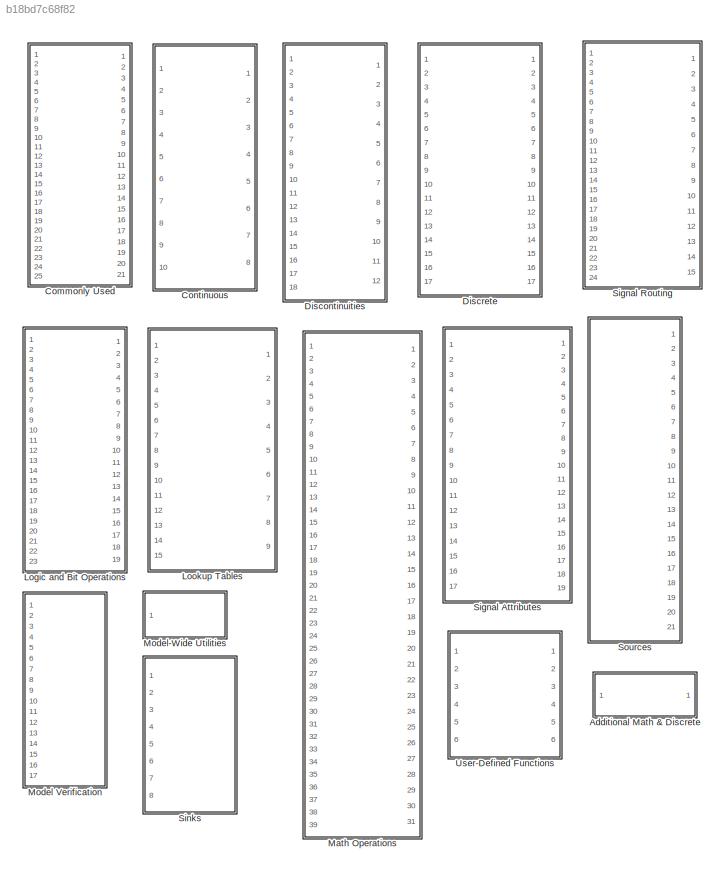
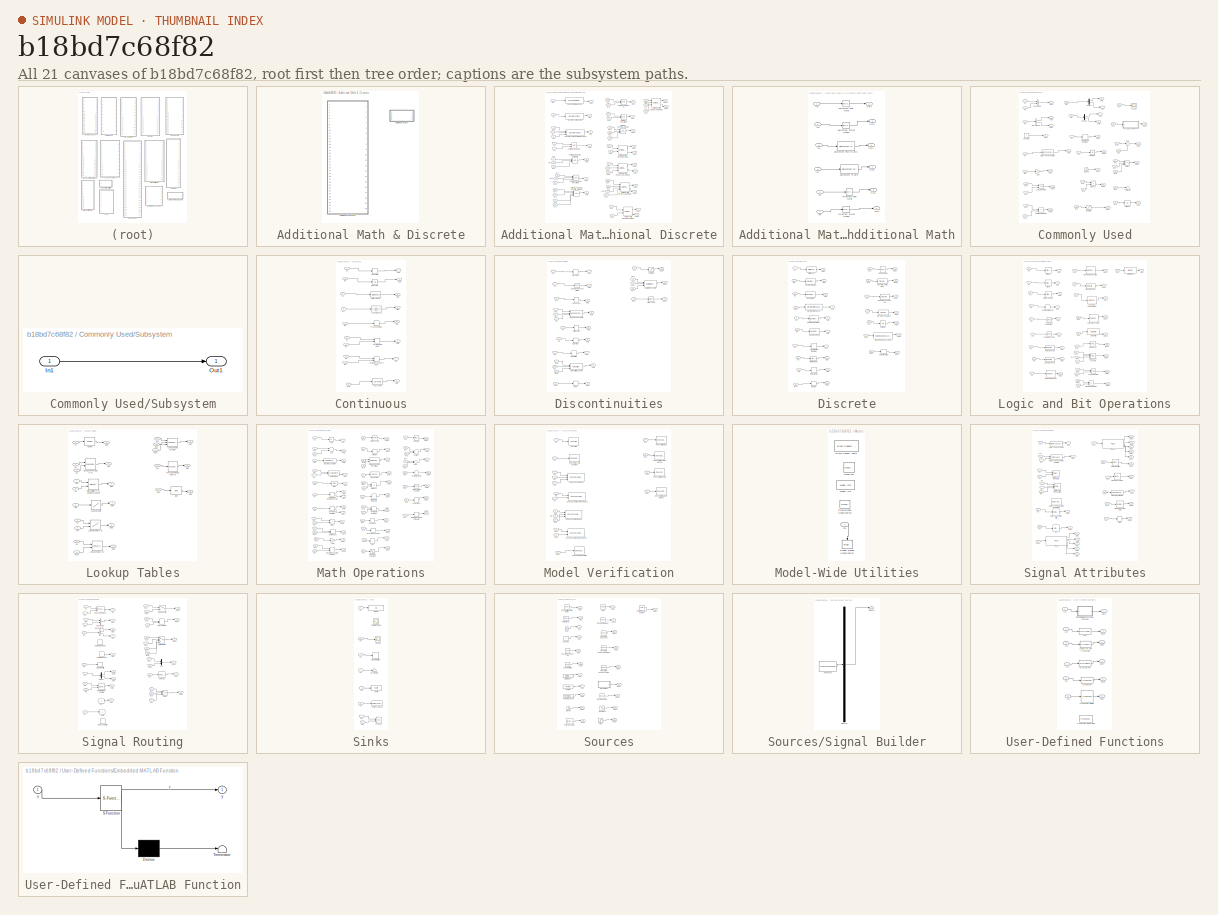
[diagram: thumbnail index - all 21 canvases of the model, root first then tree order]
MODEL slx_b18bd7c68f82
KIND model
BLOCK [SubSystem] Additional Math & Discrete
  FunctionWithSeparateData = off
  MaskHideContents = off
  MinAlgLoopOccurrences = off
  Opaque = off
  Ports = []
  PropExecContextOutsideSubsystem = off
  RTWSystemCode = Auto
  RequestExecContextInheritance = off
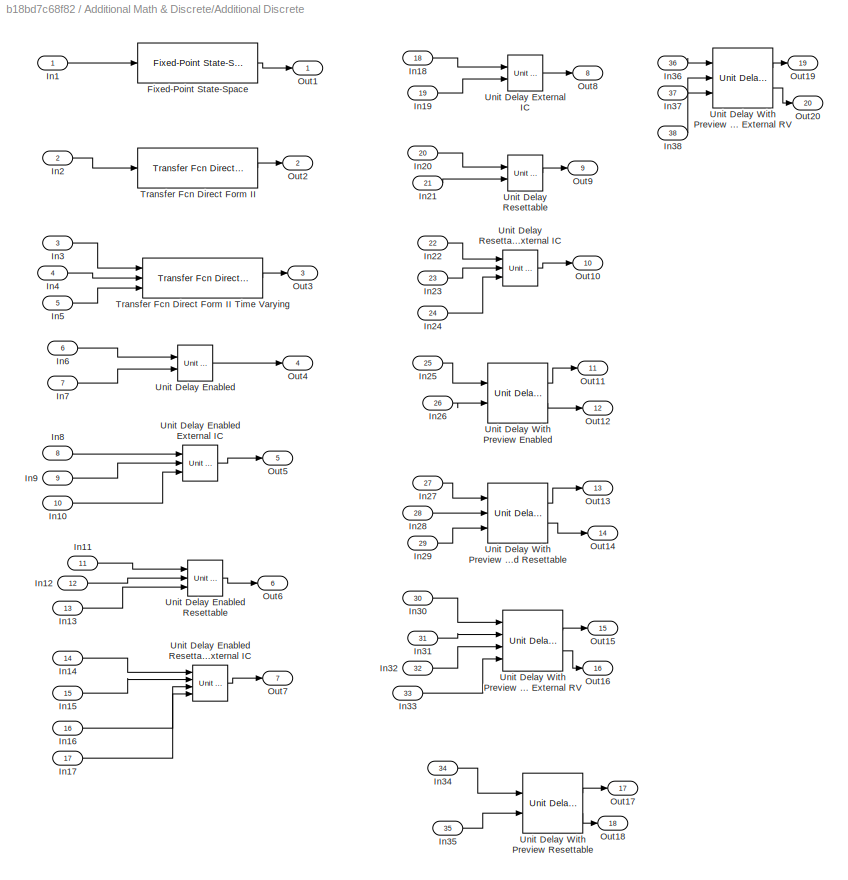
BLOCK [SubSystem] Additional Math & Discrete/Additional Discrete
  FunctionWithSeparateData = off
  MaskHideContents = off
  MinAlgLoopOccurrences = off
  Opaque = off
  Ports = [38, 20]
  PropExecContextOutsideSubsystem = off
  RTWSystemCode = Auto
  RequestExecContextInheritance = off
BLOCK [Reference] Additional Math & Discrete/Additional Discrete/Fixed-Point State-Space  REF=simulink/Additional Math
& Discrete/Additional
Discrete/Fixed-Point
State-Space
  A = [2.6020 -2.2793 0.6708; 1 0 0; 0 1 0]
  B = [ 1; 0; 0]
  C = [0.0184    0.0024    0.0055]
  D = [0.0033]
  DoSatur = off
  InternalDataType = float('double')
  LockScale = off
  OutputEqScaling = 2^0
  Ports = [1, 1]
  RndMeth = Floor
  SourceBlock = simulink/Additional Math\n& Discrete/Additional\nDiscrete/Fixed-Point\nState-Space
  SourceType = Fixed-Point State-Space
  StateEqScaling = 2^0
  X0 = 0.0
BLOCK [Inport] Additional Math & Discrete/Additional Discrete/In1
  IconDisplay = Port number
BLOCK [Inport] Additional Math & Discrete/Additional Discrete/In10
  IconDisplay = Port number
  Port = 10
BLOCK [Inport] Additional Math & Discrete/Additional Discrete/In11
  IconDisplay = Port number
  Port = 11
BLOCK [Inport] Additional Math & Discrete/Additional Discrete/In12
  IconDisplay = Port number
  Port = 12
BLOCK [Inport] Additional Math & Discrete/Additional Discrete/In13
  IconDisplay = Port number
  Port = 13
BLOCK [Inport] Additional Math & Discrete/Additional Discrete/In14
  IconDisplay = Port number
  Port = 14
BLOCK [Inport] Additional Math & Discrete/Additional Discrete/In15
  IconDisplay = Port number
  Port = 15
BLOCK [Inport] Additional Math & Discrete/Additional Discrete/In16
  IconDisplay = Port number
  Port = 16
BLOCK [Inport] Additional Math & Discrete/Additional Discrete/In17
  IconDisplay = Port number
  Port = 17
BLOCK [Inport] Additional Math & Discrete/Additional Discrete/In18
  IconDisplay = Port number
  Port = 18
BLOCK [Inport] Additional Math & Discrete/Additional Discrete/In19
  IconDisplay = Port number
  Port = 19
BLOCK [Inport] Additional Math & Discrete/Additional Discrete/In2
  IconDisplay = Port number
  Port = 2
BLOCK [Inport] Additional Math & Discrete/Additional Discrete/In20
  IconDisplay = Port number
  Port = 20
BLOCK [Inport] Additional Math & Discrete/Additional Discrete/In21
  IconDisplay = Port number
  Port = 21
BLOCK [Inport] Additional Math & Discrete/Additional Discrete/In22
  IconDisplay = Port number
  Port = 22
BLOCK [Inport] Additional Math & Discrete/Additional Discrete/In23
  IconDisplay = Port number
  Port = 23
BLOCK [Inport] Additional Math & Discrete/Additional Discrete/In24
  IconDisplay = Port number
  Port = 24
BLOCK [Inport] Additional Math & Discrete/Additional Discrete/In25
  IconDisplay = Port number
  Port = 25
BLOCK [Inport] Additional Math & Discrete/Additional Discrete/In26
  IconDisplay = Port number
  Port = 26
BLOCK [Inport] Additional Math & Discrete/Additional Discrete/In27
  IconDisplay = Port number
  Port = 27
BLOCK [Inport] Additional Math & Discrete/Additional Discrete/In28
  IconDisplay = Port number
  Port = 28
BLOCK [Inport] Additional Math & Discrete/Additional Discrete/In29
  IconDisplay = Port number
  Port = 29
BLOCK [Inport] Additional Math & Discrete/Additional Discrete/In3
  IconDisplay = Port number
  Port = 3
BLOCK [Inport] Additional Math & Discrete/Additional Discrete/In30
  IconDisplay = Port number
  Port = 30
BLOCK [Inport] Additional Math & Discrete/Additional Discrete/In31
  IconDisplay = Port number
  Port = 31
BLOCK [Inport] Additional Math & Discrete/Additional Discrete/In32
  IconDisplay = Port number
  Port = 32
BLOCK [Inport] Additional Math & Discrete/Additional Discrete/In33
  IconDisplay = Port number
  Port = 33
BLOCK [Inport] Additional Math & Discrete/Additional Discrete/In34
  IconDisplay = Port number
  Port = 34
BLOCK [Inport] Additional Math & Discrete/Additional Discrete/In35
  IconDisplay = Port number
  Port = 35
BLOCK [Inport] Additional Math & Discrete/Additional Discrete/In36
  IconDisplay = Port number
  Port = 36
BLOCK [Inport] Additional Math & Discrete/Additional Discrete/In37
  IconDisplay = Port number
  Port = 37
BLOCK [Inport] Additional Math & Discrete/Additional Discrete/In38
  IconDisplay = Port number
  Port = 38
BLOCK [Inport] Additional Math & Discrete/Additional Discrete/In4
  IconDisplay = Port number
  Port = 4
BLOCK [Inport] Additional Math & Discrete/Additional Discrete/In5
  IconDisplay = Port number
  Port = 5
BLOCK [Inport] Additional Math & Discrete/Additional Discrete/In6
  IconDisplay = Port number
  Port = 6
BLOCK [Inport] Additional Math & Discrete/Additional Discrete/In7
  IconDisplay = Port number
  Port = 7
BLOCK [Inport] Additional Math & Discrete/Additional Discrete/In8
  IconDisplay = Port number
  Port = 8
BLOCK [Inport] Additional Math & Discrete/Additional Discrete/In9
  IconDisplay = Port number
  Port = 9
BLOCK [Outport] Additional Math & Discrete/Additional Discrete/Out1
  IconDisplay = Port number
BLOCK [Outport] Additional Math & Discrete/Additional Discrete/Out10
  IconDisplay = Port number
  Port = 10
BLOCK [Outport] Additional Math & Discrete/Additional Discrete/Out11
  IconDisplay = Port number
  Port = 11
BLOCK [Outport] Additional Math & Discrete/Additional Discrete/Out12
  IconDisplay = Port number
  Port = 12
BLOCK [Outport] Additional Math & Discrete/Additional Discrete/Out13
  IconDisplay = Port number
  Port = 13
BLOCK [Outport] Additional Math & Discrete/Additional Discrete/Out14
  IconDisplay = Port number
  Port = 14
BLOCK [Outport] Additional Math & Discrete/Additional Discrete/Out15
  IconDisplay = Port number
  Port = 15
BLOCK [Outport] Additional Math & Discrete/Additional Discrete/Out16
  IconDisplay = Port number
  Port = 16
BLOCK [Outport] Additional Math & Discrete/Additional Discrete/Out17
  IconDisplay = Port number
  Port = 17
BLOCK [Outport] Additional Math & Discrete/Additional Discrete/Out18
  IconDisplay = Port number
  Port = 18
BLOCK [Outport] Additional Math & Discrete/Additional Discrete/Out19
  IconDisplay = Port number
  Port = 19
BLOCK [Outport] Additional Math & Discrete/Additional Discrete/Out2
  IconDisplay = Port number
  Port = 2
BLOCK [Outport] Additional Math & Discrete/Additional Discrete/Out20
  IconDisplay = Port number
  Port = 20
BLOCK [Outport] Additional Math & Discrete/Additional Discrete/Out3
  IconDisplay = Port number
  Port = 3
BLOCK [Outport] Additional Math & Discrete/Additional Discrete/Out4
  IconDisplay = Port number
  Port = 4
BLOCK [Outport] Additional Math & Discrete/Additional Discrete/Out5
  IconDisplay = Port number
  Port = 5
BLOCK [Outport] Additional Math & Discrete/Additional Discrete/Out6
  IconDisplay = Port number
  Port = 6
BLOCK [Outport] Additional Math & Discrete/Additional Discrete/Out7
  IconDisplay = Port number
  Port = 7
BLOCK [Outport] Additional Math & Discrete/Additional Discrete/Out8
  IconDisplay = Port number
  Port = 8
BLOCK [Outport] Additional Math & Discrete/Additional Discrete/Out9
  IconDisplay = Port number
  Port = 9
BLOCK [Reference] Additional Math & Discrete/Additional Discrete/Transfer Fcn Direct Form II  REF=simulink/Additional Math
& Discrete/Additional
Discrete/Transfer Fcn
Direct Form II
  DenCoefVec = [-0.9    0.6]
  DoSatur = off
  NumCoefVec = [0.2 0.3 0.2]
  Ports = [1, 1]
  RndMeth = Floor
  SourceBlock = simulink/Additional Math\n& Discrete/Additional\nDiscrete/Transfer Fcn\nDirect Form II
  SourceType = Transfer Fcn Direct Form II
  vinit = 0.0
BLOCK [Reference] Additional Math & Discrete/Additional Discrete/Transfer Fcn Direct Form II Time Varying  REF=simulink/Additional Math
& Discrete/Additional
Discrete/Transfer Fcn
Direct Form II
Time Varying
  DoSatur = off
  Ports = [3, 1]
  RndMeth = Floor
  SourceBlock = simulink/Additional Math\n& Discrete/Additional\nDiscrete/Transfer Fcn\nDirect Form II\nTime Varying
  SourceType = Transfer Fcn Direct Form II Time Varying
  vinit = 0.0
BLOCK [Reference] Additional Math & Discrete/Additional Discrete/Unit Delay Enabled  REF=simulink/Additional Math
& Discrete/Additional
Discrete/Unit Delay
Enabled
  Ports = [2, 1]
  SourceBlock = simulink/Additional Math\n& Discrete/Additional\nDiscrete/Unit Delay\nEnabled
  SourceType = Unit Delay Enabled
  tsamp = -1
  vinit = 0.0
BLOCK [Reference] Additional Math & Discrete/Additional Discrete/Unit Delay Enabled External IC  REF=simulink/Additional Math
& Discrete/Additional
Discrete/Unit Delay
Enabled
External IC
  Ports = [3, 1]
  SourceBlock = simulink/Additional Math\n& Discrete/Additional\nDiscrete/Unit Delay\nEnabled\nExternal IC
  SourceType = Unit Delay Enabled External Initial Condition
  tsamp = -1
BLOCK [Reference] Additional Math & Discrete/Additional Discrete/Unit Delay Enabled Resettable  REF=simulink/Additional Math
& Discrete/Additional
Discrete/Unit Delay
Enabled
Resettable
  Ports = [3, 1]
  SourceBlock = simulink/Additional Math\n& Discrete/Additional\nDiscrete/Unit Delay\nEnabled\nResettable
  SourceType = Unit Delay Enabled Resettable
  tsamp = -1
  vinit = 0.0
BLOCK [Reference] Additional Math & Discrete/Additional Discrete/Unit Delay Enabled Resettable External IC  REF=simulink/Additional Math
& Discrete/Additional
Discrete/Unit Delay
Enabled
Resettable
External IC
  Ports = [4, 1]
  SourceBlock = simulink/Additional Math\n& Discrete/Additional\nDiscrete/Unit Delay\nEnabled\nResettable\nExternal IC
  SourceType = Unit Delay Enabled Resettable External Initial Condition
  tsamp = -1
BLOCK [Reference] Additional Math & Discrete/Additional Discrete/Unit Delay External IC  REF=simulink/Additional Math
& Discrete/Additional
Discrete/Unit Delay
External IC
  Ports = [2, 1]
  SourceBlock = simulink/Additional Math\n& Discrete/Additional\nDiscrete/Unit Delay\nExternal IC
  SourceType = Unit Delay External Initial Condition
  tsamp = -1
BLOCK [Reference] Additional Math & Discrete/Additional Discrete/Unit Delay Resettable  REF=simulink/Additional Math
& Discrete/Additional
Discrete/Unit Delay
Resettable
  Ports = [2, 1]
  SourceBlock = simulink/Additional Math\n& Discrete/Additional\nDiscrete/Unit Delay\nResettable
  SourceType = Unit Delay Resettable
  tsamp = -1
  vinit = 0.0
BLOCK [Reference] Additional Math & Discrete/Additional Discrete/Unit Delay Resettable External IC  REF=simulink/Additional Math
& Discrete/Additional
Discrete/Unit Delay
Resettable
External IC
  Ports = [3, 1]
  SourceBlock = simulink/Additional Math\n& Discrete/Additional\nDiscrete/Unit Delay\nResettable\nExternal IC
  SourceType = Unit Delay Resettable External Initial Condition
  tsamp = -1
BLOCK [Reference] Additional Math & Discrete/Additional Discrete/Unit Delay With Preview Enabled  REF=simulink/Additional Math
& Discrete/Additional
Discrete/Unit Delay
With Preview
Enabled
  Ports = [2, 2]
  SourceBlock = simulink/Additional Math\n& Discrete/Additional\nDiscrete/Unit Delay\nWith Preview\nEnabled
  SourceType = Unit Delay With Preview Enabled
  tsamp = -1
  vinit = 0.0
BLOCK [Reference] Additional Math & Discrete/Additional Discrete/Unit Delay With Preview Enabled Resettable  REF=simulink/Additional Math
& Discrete/Additional
Discrete/Unit Delay
With Preview
Enabled
Resettable
  Ports = [3, 2]
  SourceBlock = simulink/Additional Math\n& Discrete/Additional\nDiscrete/Unit Delay\nWith Preview\nEnabled\nResettable
  SourceType = Unit Delay With Preview Enabled Resettable
  tsamp = -1
  vinit = 0.0
BLOCK [Reference] Additional Math & Discrete/Additional Discrete/Unit Delay With Preview Enabled Resettable External RV  REF=simulink/Additional Math
& Discrete/Additional
Discrete/Unit Delay
With Preview
Enabled
Resettable
External RV
  Ports = [4, 2]
  SourceBlock = simulink/Additional Math\n& Discrete/Additional\nDiscrete/Unit Delay\nWith Preview\nEnabled\nResettable\nExternal RV
  SourceType = Unit Delay With Preview Enabled Resettable External RV
  tsamp = -1
  vinit = 0.0
BLOCK [Reference] Additional Math & Discrete/Additional Discrete/Unit Delay With Preview Resettable  REF=simulink/Additional Math
& Discrete/Additional
Discrete/Unit Delay
With Preview
Resettable
  Ports = [2, 2]
  SourceBlock = simulink/Additional Math\n& Discrete/Additional\nDiscrete/Unit Delay\nWith Preview\nResettable
  SourceType = Unit Delay With Preview Resettable
  tsamp = -1
  vinit = 0.0
BLOCK [Reference] Additional Math & Discrete/Additional Discrete/Unit Delay With Preview Resettable External RV  REF=simulink/Additional Math
& Discrete/Additional
Discrete/Unit Delay
With Preview
Resettable
External RV
  Ports = [3, 2]
  SourceBlock = simulink/Additional Math\n& Discrete/Additional\nDiscrete/Unit Delay\nWith Preview\nResettable\nExternal RV
  SourceType = Unit Delay With Preview Resettable External RV
  tsamp = -1
  vinit = 0.0
BLOCK [SubSystem] Additional Math & Discrete/Additional Math
  FunctionWithSeparateData = off
  MaskHideContents = off
  MinAlgLoopOccurrences = off
  Opaque = off
  Ports = [6, 6]
  PropExecContextOutsideSubsystem = off
  RTWSystemCode = Auto
  RequestExecContextInheritance = off
BLOCK [Reference] Additional Math & Discrete/Additional Math/Decrement Real World  REF=simulink/Additional Math
& Discrete/Additional Math:
Increment - Decrement/Decrement
Real World
  Ports = [1, 1]
  SourceBlock = simulink/Additional Math\n& Discrete/Additional Math:\nIncrement - Decrement/Decrement\nReal World
  SourceType = Real World Value Decrement
BLOCK [Reference] Additional Math & Discrete/Additional Math/Decrement Stored Integer  REF=simulink/Additional Math
& Discrete/Additional Math:
Increment - Decrement/Decrement
Stored Integer
  Ports = [1, 1]
  SourceBlock = simulink/Additional Math\n& Discrete/Additional Math:\nIncrement - Decrement/Decrement\nStored Integer
  SourceType = Stored Integer Value Decrement
BLOCK [Reference] Additional Math & Discrete/Additional Math/Decrement Time To Zero  REF=simulink/Additional Math
& Discrete/Additional Math:
Increment - Decrement/Decrement Time
To Zero
  Ports = [1, 1]
  SourceBlock = simulink/Additional Math\n& Discrete/Additional Math:\nIncrement - Decrement/Decrement Time\nTo Zero
  SourceType = Decrement Time To Zero
BLOCK [Reference] Additional Math & Discrete/Additional Math/Decrement To Zero  REF=simulink/Additional Math
& Discrete/Additional Math:
Increment - Decrement/Decrement
To Zero
  Ports = [1, 1]
  SourceBlock = simulink/Additional Math\n& Discrete/Additional Math:\nIncrement - Decrement/Decrement\nTo Zero
  SourceType = Decrement To Zero
BLOCK [Inport] Additional Math & Discrete/Additional Math/In1
  IconDisplay = Port number
BLOCK [Inport] Additional Math & Discrete/Additional Math/In2
  IconDisplay = Port number
  Port = 2
BLOCK [Inport] Additional Math & Discrete/Additional Math/In3
  IconDisplay = Port number
  Port = 3
BLOCK [Inport] Additional Math & Discrete/Additional Math/In4
  IconDisplay = Port number
  Port = 4
BLOCK [Inport] Additional Math & Discrete/Additional Math/In5
  IconDisplay = Port number
  Port = 5
BLOCK [Inport] Additional Math & Discrete/Additional Math/In6
  IconDisplay = Port number
  Port = 6
BLOCK [Reference] Additional Math & Discrete/Additional Math/Increment Real World  REF=simulink/Additional Math
& Discrete/Additional Math:
Increment - Decrement/Increment
Real World
  Ports = [1, 1]
  SourceBlock = simulink/Additional Math\n& Discrete/Additional Math:\nIncrement - Decrement/Increment\nReal World
  SourceType = Real World Value Increment
BLOCK [Reference] Additional Math & Discrete/Additional Math/Increment Stored Integer  REF=simulink/Additional Math
& Discrete/Additional Math:
Increment - Decrement/Increment
Stored Integer
  Ports = [1, 1]
  SourceBlock = simulink/Additional Math\n& Discrete/Additional Math:\nIncrement - Decrement/Increment\nStored Integer
  SourceType = Stored Integer Value Increment
BLOCK [Outport] Additional Math & Discrete/Additional Math/Out2
  IconDisplay = Port number
BLOCK [Outport] Additional Math & Discrete/Additional Math/Out3
  IconDisplay = Port number
  Port = 2
BLOCK [Outport] Additional Math & Discrete/Additional Math/Out4
  IconDisplay = Port number
  Port = 3
BLOCK [Outport] Additional Math & Discrete/Additional Math/Out5
  IconDisplay = Port number
  Port = 4
BLOCK [Outport] Additional Math & Discrete/Additional Math/Out6
  IconDisplay = Port number
  Port = 5
BLOCK [Outport] Additional Math & Discrete/Additional Math/Out7
  IconDisplay = Port number
  Port = 6
BLOCK [SubSystem] Commonly Used
  FunctionWithSeparateData = off
  MaskHideContents = off
  MinAlgLoopOccurrences = off
  Opaque = off
  Ports = [25, 21]
  PropExecContextOutsideSubsystem = off
  RTWSystemCode = Auto
  RequestExecContextInheritance = off
BLOCK [BusCreator] Commonly Used/Bus Creator
  DisplayOption = bar
  Inputs = 2
  Ports = [2, 1]
BLOCK [BusSelector] Commonly Used/Bus Selector
  OutputSignals = signal1,signal2
  Ports = [1, 2]
BLOCK [Constant] Commonly Used/Constant
BLOCK [DataTypeConversion] Commonly Used/Data Type Conversion
  RndMeth = Floor
  SaturateOnIntegerOverflow = off
BLOCK [Demux] Commonly Used/Demux
  DisplayOption = bar
  Outputs = 2
  Ports = [1, 2]
BLOCK [Demux] Commonly Used/Demux1
  DisplayOption = bar
  Outputs = 2
  Ports = [1, 2]
BLOCK [DiscreteIntegrator] Commonly Used/Discrete-Time Integrator
  ICPrevOutput = DiscIntNeverNeededParam
  ICPrevScaledInput = DiscIntNeverNeededParam
  Ports = [1, 1]
BLOCK [Gain] Commonly Used/Gain
  OutDataTypeStr = Inherit: Inherit via internal rule
  ParamDataTypeStr = Inherit: Inherit via internal rule
  SaturateOnIntegerOverflow = off
BLOCK [Ground] Commonly Used/Ground
BLOCK [Inport] Commonly Used/In1
  IconDisplay = Port number
BLOCK [Inport] Commonly Used/In10
  IconDisplay = Port number
  Port = 10
BLOCK [Inport] Commonly Used/In11
  IconDisplay = Port number
  Port = 11
BLOCK [Inport] Commonly Used/In12
  IconDisplay = Port number
  Port = 12
BLOCK [Inport] Commonly Used/In13
  IconDisplay = Port number
  Port = 13
BLOCK [Inport] Commonly Used/In14
  IconDisplay = Port number
  Port = 14
BLOCK [Inport] Commonly Used/In15
  IconDisplay = Port number
  Port = 15
BLOCK [Inport] Commonly Used/In16
  IconDisplay = Port number
  Port = 16
BLOCK [Inport] Commonly Used/In17
  IconDisplay = Port number
  Port = 17
BLOCK [Inport] Commonly Used/In18
  IconDisplay = Port number
  Port = 18
BLOCK [Inport] Commonly Used/In19
  IconDisplay = Port number
  Port = 19
BLOCK [Inport] Commonly Used/In2
  IconDisplay = Port number
  Port = 2
BLOCK [Inport] Commonly Used/In20
  IconDisplay = Port number
  Port = 20
BLOCK [Inport] Commonly Used/In21
  IconDisplay = Port number
  Port = 21
BLOCK [Inport] Commonly Used/In22
  IconDisplay = Port number
  Port = 22
BLOCK [Inport] Commonly Used/In23
  IconDisplay = Port number
  Port = 23
BLOCK [Inport] Commonly Used/In24
  IconDisplay = Port number
  Port = 24
BLOCK [Inport] Commonly Used/In25
  IconDisplay = Port number
  Port = 25
BLOCK [Inport] Commonly Used/In3
  IconDisplay = Port number
  Port = 3
BLOCK [Inport] Commonly Used/In4
  IconDisplay = Port number
  Port = 4
BLOCK [Inport] Commonly Used/In5
  IconDisplay = Port number
  Port = 5
BLOCK [Inport] Commonly Used/In6
  IconDisplay = Port number
  Port = 6
BLOCK [Inport] Commonly Used/In7
  IconDisplay = Port number
  Port = 7
BLOCK [Inport] Commonly Used/In8
  IconDisplay = Port number
  Port = 8
BLOCK [Inport] Commonly Used/In9
  IconDisplay = Port number
  Port = 9
BLOCK [Integrator] Commonly Used/Integrator
  Ports = [1, 1]
BLOCK [Logic] Commonly Used/Logical Operator
  AllPortsSameDT = off
  OutDataTypeStr = boolean
  Ports = [2, 1]
BLOCK [Outport] Commonly Used/Out1
  IconDisplay = Port number
BLOCK [Outport] Commonly Used/Out10
  IconDisplay = Port number
  Port = 10
BLOCK [Outport] Commonly Used/Out11
  IconDisplay = Port number
  Port = 11
BLOCK [Outport] Commonly Used/Out12
  IconDisplay = Port number
  Port = 12
BLOCK [Outport] Commonly Used/Out13
  IconDisplay = Port number
  Port = 13
BLOCK [Outport] Commonly Used/Out14
  IconDisplay = Port number
  Port = 14
BLOCK [Outport] Commonly Used/Out15
  IconDisplay = Port number
  Port = 15
BLOCK [Outport] Commonly Used/Out16
  IconDisplay = Port number
  Port = 16
BLOCK [Outport] Commonly Used/Out17
  IconDisplay = Port number
  Port = 17
BLOCK [Outport] Commonly Used/Out18
  IconDisplay = Port number
  Port = 18
BLOCK [Outport] Commonly Used/Out19
  IconDisplay = Port number
  Port = 19
BLOCK [Outport] Commonly Used/Out2
  IconDisplay = Port number
  Port = 2
BLOCK [Outport] Commonly Used/Out20
  IconDisplay = Port number
  Port = 20
BLOCK [Outport] Commonly Used/Out21
  IconDisplay = Port number
  Port = 21
BLOCK [Outport] Commonly Used/Out3
  IconDisplay = Port number
  Port = 3
BLOCK [Outport] Commonly Used/Out4
  IconDisplay = Port number
  Port = 4
BLOCK [Outport] Commonly Used/Out5
  IconDisplay = Port number
  Port = 5
BLOCK [Outport] Commonly Used/Out6
  IconDisplay = Port number
  Port = 6
BLOCK [Outport] Commonly Used/Out7
  IconDisplay = Port number
  Port = 7
BLOCK [Outport] Commonly Used/Out8
  IconDisplay = Port number
  Port = 8
BLOCK [Outport] Commonly Used/Out9
  IconDisplay = Port number
  Port = 9
BLOCK [Product] Commonly Used/Product
  InputSameDT = off
  OutDataTypeStr = Inherit: Inherit via internal rule
  Ports = [2, 1]
  SaturateOnIntegerOverflow = off
BLOCK [RelationalOperator] Commonly Used/Relational Operator
  InputSameDT = off
  Operator = <=
  OutDataTypeStr = boolean
  Ports = [2, 1]
BLOCK [Saturate] Commonly Used/Saturation
  InputPortMap = u0
  Ports = [1, 1]
BLOCK [Scope] Commonly Used/Scope
  DataFormat = StructureWithTime
  Floating = off
  NumInputPorts = 1
  Ports = [1]
  SampleTime = 0
  SaveName = ScopeData1
  ShowLegends = off
BLOCK [SubSystem] Commonly Used/Subsystem
  FunctionWithSeparateData = off
  MaskHideContents = off
  MinAlgLoopOccurrences = off
  Opaque = off
  Ports = [1, 1]
  PropExecContextOutsideSubsystem = off
  RTWSystemCode = Auto
  RequestExecContextInheritance = off
BLOCK [Inport] Commonly Used/Subsystem/In1
  IconDisplay = Port number
BLOCK [Outport] Commonly Used/Subsystem/Out1
  IconDisplay = Port number
BLOCK [Sum] Commonly Used/Sum
  IconShape = round
  InputSameDT = off
  Inputs = |++
  OutDataTypeStr = Inherit: Inherit via internal rule
  Ports = [2, 1]
  SaturateOnIntegerOverflow = off
BLOCK [Switch] Commonly Used/Switch
  InputSameDT = off
  SaturateOnIntegerOverflow = off
BLOCK [Terminator] Commonly Used/Terminator
BLOCK [UnitDelay] Commonly Used/Unit Delay
BLOCK [SubSystem] Continuous
  FunctionWithSeparateData = off
  MaskHideContents = off
  MinAlgLoopOccurrences = off
  Opaque = off
  Ports = [10, 8]
  PropExecContextOutsideSubsystem = off
  RTWSystemCode = Auto
  RequestExecContextInheritance = off
BLOCK [Derivative] Continuous/Derivative
BLOCK [Inport] Continuous/In1
  IconDisplay = Port number
BLOCK [Inport] Continuous/In10
  IconDisplay = Port number
  Port = 10
BLOCK [Inport] Continuous/In2
  IconDisplay = Port number
  Port = 2
BLOCK [Inport] Continuous/In3
  IconDisplay = Port number
  Port = 3
BLOCK [Inport] Continuous/In4
  IconDisplay = Port number
  Port = 4
BLOCK [Inport] Continuous/In5
  IconDisplay = Port number
  Port = 5
BLOCK [Inport] Continuous/In6
  IconDisplay = Port number
  Port = 6
BLOCK [Inport] Continuous/In7
  IconDisplay = Port number
  Port = 7
BLOCK [Inport] Continuous/In8
  IconDisplay = Port number
  Port = 8
BLOCK [Inport] Continuous/In9
  IconDisplay = Port number
  Port = 9
BLOCK [Integrator] Continuous/Integrator
  Ports = [1, 1]
BLOCK [Outport] Continuous/Out1
  IconDisplay = Port number
BLOCK [Outport] Continuous/Out2
  IconDisplay = Port number
  Port = 2
BLOCK [Outport] Continuous/Out3
  IconDisplay = Port number
  Port = 3
BLOCK [Outport] Continuous/Out4
  IconDisplay = Port number
  Port = 4
BLOCK [Outport] Continuous/Out5
  IconDisplay = Port number
  Port = 5
BLOCK [Outport] Continuous/Out6
  IconDisplay = Port number
  Port = 6
BLOCK [Outport] Continuous/Out7
  IconDisplay = Port number
  Port = 7
BLOCK [Outport] Continuous/Out8
  IconDisplay = Port number
  Port = 8
BLOCK [StateSpace] Continuous/State-Space
  Ports = [1, 1]
  X0 = 0
BLOCK [TransferFcn] Continuous/Transfer Fcn
  Denominator = [1 1]
BLOCK [TransportDelay] Continuous/Transport Delay
  Ports = [1, 1]
BLOCK [VariableTransportDelay] Continuous/Variable Time Delay
  MaximumDelay = 10
  Ports = [2, 1]
BLOCK [VariableTransportDelay] Continuous/Variable Transport Delay
  MaximumDelay = 10
  Ports = [2, 1]
  VariableDelayType = Variable transport delay
BLOCK [ZeroPole] Continuous/Zero-Pole
  Poles = [0 -1]
BLOCK [SubSystem] Discontinuities
  FunctionWithSeparateData = off
  MaskHideContents = off
  MinAlgLoopOccurrences = off
  Opaque = off
  Ports = [18, 12]
  PropExecContextOutsideSubsystem = off
  RTWSystemCode = Auto
  RequestExecContextInheritance = off
BLOCK [Backlash] Discontinuities/Backlash
BLOCK [Reference] Discontinuities/Coulomb & Viscous Friction  REF=simulink/Discontinuities/Coulomb &
Viscous Friction
  Ports = [1, 1]
  SourceBlock = simulink/Discontinuities/Coulomb &\nViscous Friction
  SourceType = Coulombic and Viscous Friction
  gain = 1
  offset = [1 3 2 0]
BLOCK [DeadZone] Discontinuities/Dead Zone
BLOCK [Reference] Discontinuities/Dead Zone Dynamic  REF=simulink/Discontinuities/Dead Zone
Dynamic
  Ports = [3, 1]
  SourceBlock = simulink/Discontinuities/Dead Zone\nDynamic
  SourceType = Dead Zone Dynamic
BLOCK [HitCross] Discontinuities/Hit Crossing
  Ports = [1, 1]
BLOCK [Inport] Discontinuities/In1
  IconDisplay = Port number
BLOCK [Inport] Discontinuities/In10
  IconDisplay = Port number
  Port = 10
BLOCK [Inport] Discontinuities/In11
  IconDisplay = Port number
  Port = 11
BLOCK [Inport] Discontinuities/In12
  IconDisplay = Port number
  Port = 12
BLOCK [Inport] Discontinuities/In13
  IconDisplay = Port number
  Port = 13
BLOCK [Inport] Discontinuities/In14
  IconDisplay = Port number
  Port = 14
BLOCK [Inport] Discontinuities/In15
  IconDisplay = Port number
  Port = 15
BLOCK [Inport] Discontinuities/In16
  IconDisplay = Port number
  Port = 16
BLOCK [Inport] Discontinuities/In17
  IconDisplay = Port number
  Port = 17
BLOCK [Inport] Discontinuities/In18
  IconDisplay = Port number
  Port = 18
BLOCK [Inport] Discontinuities/In2
  IconDisplay = Port number
  Port = 2
BLOCK [Inport] Discontinuities/In3
  IconDisplay = Port number
  Port = 3
BLOCK [Inport] Discontinuities/In4
  IconDisplay = Port number
  Port = 4
BLOCK [Inport] Discontinuities/In5
  IconDisplay = Port number
  Port = 5
BLOCK [Inport] Discontinuities/In6
  IconDisplay = Port number
  Port = 6
BLOCK [Inport] Discontinuities/In7
  IconDisplay = Port number
  Port = 7
BLOCK [Inport] Discontinuities/In8
  IconDisplay = Port number
  Port = 8
BLOCK [Inport] Discontinuities/In9
  IconDisplay = Port number
  Port = 9
BLOCK [Outport] Discontinuities/Out1
  IconDisplay = Port number
BLOCK [Outport] Discontinuities/Out10
  IconDisplay = Port number
  Port = 10
BLOCK [Outport] Discontinuities/Out11
  IconDisplay = Port number
  Port = 11
BLOCK [Outport] Discontinuities/Out12
  IconDisplay = Port number
  Port = 12
BLOCK [Outport] Discontinuities/Out2
  IconDisplay = Port number
  Port = 2
BLOCK [Outport] Discontinuities/Out3
  IconDisplay = Port number
  Port = 3
BLOCK [Outport] Discontinuities/Out4
  IconDisplay = Port number
  Port = 4
BLOCK [Outport] Discontinuities/Out5
  IconDisplay = Port number
  Port = 5
BLOCK [Outport] Discontinuities/Out6
  IconDisplay = Port number
  Port = 6
BLOCK [Outport] Discontinuities/Out7
  IconDisplay = Port number
  Port = 7
BLOCK [Outport] Discontinuities/Out8
  IconDisplay = Port number
  Port = 8
BLOCK [Outport] Discontinuities/Out9
  IconDisplay = Port number
  Port = 9
BLOCK [Quantizer] Discontinuities/Quantizer
BLOCK [RateLimiter] Discontinuities/Rate Limiter
  SampleTimeMode = inherited
BLOCK [Reference] Discontinuities/Rate Limiter Dynamic  REF=simulink/Discontinuities/Rate Limiter
Dynamic
  Ports = [3, 1]
  SourceBlock = simulink/Discontinuities/Rate Limiter\nDynamic
  SourceType = Rate Limiter Dynamic
BLOCK [Relay] Discontinuities/Relay
BLOCK [Saturate] Discontinuities/Saturation
  InputPortMap = u0
  Ports = [1, 1]
BLOCK [Reference] Discontinuities/Saturation Dynamic  REF=simulink/Discontinuities/Saturation
Dynamic
  DoSatur = off
  LockScale = off
  OutDataType = fixdt(1, 16)
  OutDataTypeStr = Inherit: Same as second input
  OutMax = []
  OutMin = []
  OutScaling = 2^-10
  OutputDataTypeScalingMode = Same as second input
  Ports = [3, 1]
  RndMeth = Floor
  SourceBlock = simulink/Discontinuities/Saturation\nDynamic
  SourceType = Saturation Dynamic
BLOCK [Reference] Discontinuities/Wrap To Zero  REF=simulink/Discontinuities/Wrap To Zero
  Ports = [1, 1]
  SourceBlock = simulink/Discontinuities/Wrap To Zero
  SourceType = Wrap To Zero
  Threshold = 255
BLOCK [SubSystem] Discrete
  FunctionWithSeparateData = off
  MaskHideContents = off
  MinAlgLoopOccurrences = off
  Opaque = off
  Ports = [17, 17]
  PropExecContextOutsideSubsystem = off
  RTWSystemCode = Auto
  RequestExecContextInheritance = off
BLOCK [Reference] Discrete/Difference  REF=simulink/Discrete/Difference
  DoSatur = off
  ICPrevInput = 0.0
  InputProcessing = Inherited
  LockScale = off
  OutDataType = sfix(16)
  OutDataTypeStr = Inherit: Inherit via internal rule
  OutMax = []
  OutMin = []
  OutScaling = 2^-10
  OutputDataTypeScalingMode = Inherit via internal rule
  Ports = [1, 1]
  RndMeth = Floor
  SourceBlock = simulink/Discrete/Difference
  SourceType = Difference
BLOCK [Reference] Discrete/Discrete Derivative  REF=simulink/Discrete/Discrete Derivative
  DoSatur = off
  ICPrevScaledInput = 0.0
  InputProcessing = Inherited
  LockScale = off
  OutDataType = sfix(16)
  OutDataTypeStr = Inherit: Inherit via internal rule
  OutMax = []
  OutMin = []
  OutScaling = 2^-10
  OutputDataTypeScalingMode = Inherit via internal rule
  Ports = [1, 1]
  RndMeth = Floor
  SourceBlock = simulink/Discrete/Discrete Derivative
  SourceType = Discrete Derivative
  gainval = 1.0
BLOCK [DiscreteFilter] Discrete/Discrete Filter
  InputPortMap = u0
  Ports = [1, 1]
  SampleTime = 1
BLOCK [DiscreteStateSpace] Discrete/Discrete State-Space
BLOCK [DiscreteTransferFcn] Discrete/Discrete Transfer Fcn
  InputPortMap = u0
  Ports = [1, 1]
  SampleTime = 1
BLOCK [DiscreteZeroPole] Discrete/Discrete Zero-Pole
  Gain = 1
  Poles = [0 0.5]
BLOCK [DiscreteIntegrator] Discrete/Discrete-Time Integrator
  ICPrevOutput = DiscIntNeverNeededParam
  ICPrevScaledInput = DiscIntNeverNeededParam
  Ports = [1, 1]
BLOCK [Reference] Discrete/First-Order Hold  REF=simulink/Discrete/First-Order
Hold
  DisableCoverage = on
  Ports = [1, 1]
  SourceBlock = simulink/Discrete/First-Order\nHold
  SourceType = First-Order Hold
  Ts = 1
BLOCK [Inport] Discrete/In1
  IconDisplay = Port number
BLOCK [Inport] Discrete/In10
  IconDisplay = Port number
  Port = 10
BLOCK [Inport] Discrete/In11
  IconDisplay = Port number
  Port = 11
BLOCK [Inport] Discrete/In12
  IconDisplay = Port number
  Port = 12
BLOCK [Inport] Discrete/In13
  IconDisplay = Port number
  Port = 13
BLOCK [Inport] Discrete/In14
  IconDisplay = Port number
  Port = 14
BLOCK [Inport] Discrete/In15
  IconDisplay = Port number
  Port = 15
BLOCK [Inport] Discrete/In16
  IconDisplay = Port number
  Port = 16
BLOCK [Inport] Discrete/In17
  IconDisplay = Port number
  Port = 17
BLOCK [Inport] Discrete/In2
  IconDisplay = Port number
  Port = 2
BLOCK [Inport] Discrete/In3
  IconDisplay = Port number
  Port = 3
BLOCK [Inport] Discrete/In4
  IconDisplay = Port number
  Port = 4
BLOCK [Inport] Discrete/In5
  IconDisplay = Port number
  Port = 5
BLOCK [Inport] Discrete/In6
  IconDisplay = Port number
  Port = 6
BLOCK [Inport] Discrete/In7
  IconDisplay = Port number
  Port = 7
BLOCK [Inport] Discrete/In8
  IconDisplay = Port number
  Port = 8
BLOCK [Inport] Discrete/In9
  IconDisplay = Port number
  Port = 9
BLOCK [Delay] Discrete/Integer Delay
  DelayLength = 4
  InputPortMap = u0
  InputProcessing = Inherited
  Ports = [1, 1]
BLOCK [Memory] Discrete/Memory
BLOCK [Outport] Discrete/Out1
  IconDisplay = Port number
BLOCK [Outport] Discrete/Out10
  IconDisplay = Port number
  Port = 10
BLOCK [Outport] Discrete/Out11
  IconDisplay = Port number
  Port = 11
BLOCK [Outport] Discrete/Out12
  IconDisplay = Port number
  Port = 12
BLOCK [Outport] Discrete/Out13
  IconDisplay = Port number
  Port = 13
BLOCK [Outport] Discrete/Out14
  IconDisplay = Port number
  Port = 14
BLOCK [Outport] Discrete/Out15
  IconDisplay = Port number
  Port = 15
BLOCK [Outport] Discrete/Out16
  IconDisplay = Port number
  Port = 16
BLOCK [Outport] Discrete/Out17
  IconDisplay = Port number
  Port = 17
BLOCK [Outport] Discrete/Out2
  IconDisplay = Port number
  Port = 2
BLOCK [Outport] Discrete/Out3
  IconDisplay = Port number
  Port = 3
BLOCK [Outport] Discrete/Out4
  IconDisplay = Port number
  Port = 4
BLOCK [Outport] Discrete/Out5
  IconDisplay = Port number
  Port = 5
BLOCK [Outport] Discrete/Out6
  IconDisplay = Port number
  Port = 6
BLOCK [Outport] Discrete/Out7
  IconDisplay = Port number
  Port = 7
BLOCK [Outport] Discrete/Out8
  IconDisplay = Port number
  Port = 8
BLOCK [Outport] Discrete/Out9
  IconDisplay = Port number
  Port = 9
BLOCK [Reference] Discrete/Tapped Delay  REF=simulink/Discrete/Tapped Delay
  DelayOrder = Oldest
  NumDelays = 4
  Ports = [1, 1]
  SourceBlock = simulink/Discrete/Tapped Delay
  SourceType = Tapped Delay Line
  includeCurrent = off
  samptime = -1
  vinit = 0.0
BLOCK [Reference] Discrete/Transfer Fcn First Order  REF=simulink/Discrete/Transfer Fcn
First Order
  DoSatur = off
  ICPrevOutput = 0.0
  PoleZ = 0.95
  Ports = [1, 1]
  RndMeth = Floor
  SourceBlock = simulink/Discrete/Transfer Fcn\nFirst Order
  SourceType = First Order Transfer Fcn
BLOCK [Reference] Discrete/Transfer Fcn Lead or Lag  REF=simulink/Discrete/Transfer Fcn
Lead or Lag
  DoSatur = off
  ICPrevInput = 0.0
  ICPrevOutput = 0.0
  PoleZ = 0.95
  Ports = [1, 1]
  RndMeth = Floor
  SourceBlock = simulink/Discrete/Transfer Fcn\nLead or Lag
  SourceType = Lead or Lag Compensator
  ZeroZ = 0.75
BLOCK [Reference] Discrete/Transfer Fcn Real Zero  REF=simulink/Discrete/Transfer Fcn
Real Zero
  DoSatur = off
  ICPrevInput = 0.0
  InputProcessing = Inherited
  Ports = [1, 1]
  RndMeth = Floor
  SourceBlock = simulink/Discrete/Transfer Fcn\nReal Zero
  SourceType = Transfer Fcn Real Zero
  ZeroZ = 0.75
BLOCK [UnitDelay] Discrete/Unit Delay
BLOCK [Reference] Discrete/Weighted Moving Average  REF=simulink_need_slupdate/Weighted
Moving Average
  DoSatur = off
  GainDataType = sfix( 16 )
  GainDataTypeScalingMode = Inherit via internal rule
  GainDataTypeStr = Inherit: Inherit via internal rule
  GainScaling = 2^-10
  LockScale = off
  MatRadixGroup = Best Precision: Matrix-wise
  OutDataType = sfix(16)
  OutDataTypeStr = Inherit: Inherit via internal rule
  OutScaling = 2^-10
  OutputDataTypeScalingMode = Inherit via internal rule
  Ports = [1, 1]
  RndMeth = Floor
  SourceBlock = simulink_need_slupdate/Weighted\nMoving Average
  SourceType = Weighted Moving Average
  mgainval = [0.1:0.1:1 0.9:-0.1:0.1]
  samptime = -1
  vinit = 0.0
BLOCK [ZeroOrderHold] Discrete/Zero-Order Hold
BLOCK [SubSystem] Logic and Bit Operations
  FunctionWithSeparateData = off
  MaskHideContents = off
  MinAlgLoopOccurrences = off
  Opaque = off
  Ports = [23, 19]
  PropExecContextOutsideSubsystem = off
  RTWSystemCode = Auto
  RequestExecContextInheritance = off
BLOCK [Reference] Logic and Bit Operations/Bit Clear  REF=simulink/Logic and Bit
Operations/Bit Clear
  Ports = [1, 1]
  SourceBlock = simulink/Logic and Bit\nOperations/Bit Clear
  SourceType = Bit Clear
  iBit = 0
BLOCK [Reference] Logic and Bit Operations/Bit Set  REF=simulink/Logic and Bit
Operations/Bit Set
  Ports = [1, 1]
  SourceBlock = simulink/Logic and Bit\nOperations/Bit Set
  SourceType = Bit Set
  iBit = 0
BLOCK [Reference] Logic and Bit Operations/Bitwise Operator  REF=simulink/Logic and Bit
Operations/Bitwise
Operator
  BitMask = bin2dec('11011001')
  BitMaskRealWorld = Stored Integer
  NumInputPorts = 1
  Ports = [1, 1]
  SourceBlock = simulink/Logic and Bit\nOperations/Bitwise\nOperator
  SourceType = Bitwise Operator
  UseBitMask = on
  logicop = AND
BLOCK [CombinatorialLogic] Logic and Bit Operations/Combinatorial Logic
BLOCK [Reference] Logic and Bit Operations/Compare To Constant  REF=simulink/Logic and Bit
Operations/Compare
To Constant
  OutDataTypeStr = uint8
  Ports = [1, 1]
  SourceBlock = simulink/Logic and Bit\nOperations/Compare\nTo Constant
  SourceType = Compare To Constant
  ZeroCross = off
  const = 3.0
  relop = <=
BLOCK [Reference] Logic and Bit Operations/Compare To Zero  REF=simulink/Logic and Bit
Operations/Compare
To Zero
  OutDataTypeStr = uint8
  Ports = [1, 1]
  SourceBlock = simulink/Logic and Bit\nOperations/Compare\nTo Zero
  SourceType = Compare To Zero
  ZeroCross = off
  relop = <=
BLOCK [Reference] Logic and Bit Operations/Detect Change  REF=simulink/Logic and Bit
Operations/Detect
Change
  InputProcessing = Inherited
  OutDataTypeStr = uint8
  Ports = [1, 1]
  SourceBlock = simulink/Logic and Bit\nOperations/Detect\nChange
  SourceType = Detect Change
  vinit = 0
BLOCK [Reference] Logic and Bit Operations/Detect Decrease  REF=simulink/Logic and Bit
Operations/Detect
Decrease
  InputProcessing = Inherited
  OutDataTypeStr = uint8
  Ports = [1, 1]
  SourceBlock = simulink/Logic and Bit\nOperations/Detect\nDecrease
  SourceType = Detect Decrease
  vinit = 0.0
BLOCK [Reference] Logic and Bit Operations/Detect Fall Negative  REF=simulink/Logic and Bit
Operations/Detect Fall
Negative
  InputProcessing = Inherited
  OutDataTypeStr = uint8
  Ports = [1, 1]
  SourceBlock = simulink/Logic and Bit\nOperations/Detect Fall\nNegative
  SourceType = Detect Fall Negative
  vinit = 0
BLOCK [Reference] Logic and Bit Operations/Detect Fall Nonpositive  REF=simulink/Logic and Bit
Operations/Detect Fall
Nonpositive
  InputProcessing = Inherited
  OutDataTypeStr = uint8
  Ports = [1, 1]
  SourceBlock = simulink/Logic and Bit\nOperations/Detect Fall\nNonpositive
  SourceType = Detect Fall Nonpositive
  vinit = 0
BLOCK [Reference] Logic and Bit Operations/Detect Increase  REF=simulink/Logic and Bit
Operations/Detect
Increase
  InputProcessing = Inherited
  OutDataTypeStr = uint8
  Ports = [1, 1]
  SourceBlock = simulink/Logic and Bit\nOperations/Detect\nIncrease
  SourceType = Detect Increase
  vinit = 0.0
BLOCK [Reference] Logic and Bit Operations/Detect Rise Nonnegative  REF=simulink/Logic and Bit
Operations/Detect Rise
Nonnegative
  InputProcessing = Inherited
  OutDataTypeStr = uint8
  Ports = [1, 1]
  SourceBlock = simulink/Logic and Bit\nOperations/Detect Rise\nNonnegative
  SourceType = Detect Rise Nonnegative
  vinit = 0
BLOCK [Reference] Logic and Bit Operations/Detect Rise Positive  REF=simulink/Logic and Bit
Operations/Detect Rise
Positive
  InputProcessing = Inherited
  OutDataTypeStr = uint8
  Ports = [1, 1]
  SourceBlock = simulink/Logic and Bit\nOperations/Detect Rise\nPositive
  SourceType = Detect Rise Positive
  vinit = 0
BLOCK [Reference] Logic and Bit Operations/Extract Bits  REF=simulink/Logic and Bit
Operations/Extract Bits
  Ports = [1, 1]
  SourceBlock = simulink/Logic and Bit\nOperations/Extract Bits
  SourceType = Extract Bits
  bitIdxRange = [0 7]
  bitsToExtract = Upper half
  numBits = 8
  outScalingMode = Preserve fixed-point scaling
BLOCK [Inport] Logic and Bit Operations/In1
  IconDisplay = Port number
BLOCK [Inport] Logic and Bit Operations/In10
  IconDisplay = Port number
  Port = 10
BLOCK [Inport] Logic and Bit Operations/In11
  IconDisplay = Port number
  Port = 11
BLOCK [Inport] Logic and Bit Operations/In12
  IconDisplay = Port number
  Port = 12
BLOCK [Inport] Logic and Bit Operations/In13
  IconDisplay = Port number
  Port = 20
BLOCK [Inport] Logic and Bit Operations/In14
  IconDisplay = Port number
  Port = 13
BLOCK [Inport] Logic and Bit Operations/In15
  IconDisplay = Port number
  Port = 14
BLOCK [Inport] Logic and Bit Operations/In16
  IconDisplay = Port number
  Port = 15
BLOCK [Inport] Logic and Bit Operations/In17
  IconDisplay = Port number
  Port = 16
BLOCK [Inport] Logic and Bit Operations/In18
  IconDisplay = Port number
  Port = 17
BLOCK [Inport] Logic and Bit Operations/In19
  IconDisplay = Port number
  Port = 18
BLOCK [Inport] Logic and Bit Operations/In2
  IconDisplay = Port number
  Port = 2
BLOCK [Inport] Logic and Bit Operations/In20
  IconDisplay = Port number
  Port = 19
BLOCK [Inport] Logic and Bit Operations/In21
  IconDisplay = Port number
  Port = 21
BLOCK [Inport] Logic and Bit Operations/In22
  IconDisplay = Port number
  Port = 22
BLOCK [Inport] Logic and Bit Operations/In23
  IconDisplay = Port number
  Port = 23
BLOCK [Inport] Logic and Bit Operations/In3
  IconDisplay = Port number
  Port = 3
BLOCK [Inport] Logic and Bit Operations/In4
  IconDisplay = Port number
  Port = 4
BLOCK [Inport] Logic and Bit Operations/In5
  IconDisplay = Port number
  Port = 5
BLOCK [Inport] Logic and Bit Operations/In6
  IconDisplay = Port number
  Port = 6
BLOCK [Inport] Logic and Bit Operations/In7
  IconDisplay = Port number
  Port = 7
BLOCK [Inport] Logic and Bit Operations/In8
  IconDisplay = Port number
  Port = 8
BLOCK [Inport] Logic and Bit Operations/In9
  IconDisplay = Port number
  Port = 9
BLOCK [Reference] Logic and Bit Operations/Interval Test  REF=simulink/Logic and Bit
Operations/Interval Test
  IntervalClosedLeft = on
  IntervalClosedRight = on
  OutDataTypeStr = boolean
  Ports = [1, 1]
  SourceBlock = simulink/Logic and Bit\nOperations/Interval Test
  SourceType = Interval Test
  lowlimit = -0.5
  uplimit = 0.5
BLOCK [Reference] Logic and Bit Operations/Interval Test Dynamic  REF=simulink/Logic and Bit
Operations/Interval Test
Dynamic
  IntervalClosedLeft = on
  IntervalClosedRight = on
  OutDataTypeStr = boolean
  Ports = [3, 1]
  SourceBlock = simulink/Logic and Bit\nOperations/Interval Test\nDynamic
  SourceType = Interval Test Dynamic
BLOCK [Logic] Logic and Bit Operations/Logical Operator
  AllPortsSameDT = off
  OutDataTypeStr = boolean
  Ports = [2, 1]
BLOCK [Outport] Logic and Bit Operations/Out1
  IconDisplay = Port number
BLOCK [Outport] Logic and Bit Operations/Out10
  IconDisplay = Port number
  Port = 10
BLOCK [Outport] Logic and Bit Operations/Out11
  IconDisplay = Port number
  Port = 11
BLOCK [Outport] Logic and Bit Operations/Out12
  IconDisplay = Port number
  Port = 12
BLOCK [Outport] Logic and Bit Operations/Out13
  IconDisplay = Port number
  Port = 13
BLOCK [Outport] Logic and Bit Operations/Out15
  IconDisplay = Port number
  Port = 14
BLOCK [Outport] Logic and Bit Operations/Out16
  IconDisplay = Port number
  Port = 15
BLOCK [Outport] Logic and Bit Operations/Out17
  IconDisplay = Port number
  Port = 16
BLOCK [Outport] Logic and Bit Operations/Out18
  IconDisplay = Port number
  Port = 17
BLOCK [Outport] Logic and Bit Operations/Out19
  IconDisplay = Port number
  Port = 18
BLOCK [Outport] Logic and Bit Operations/Out2
  IconDisplay = Port number
  Port = 2
BLOCK [Outport] Logic and Bit Operations/Out20
  IconDisplay = Port number
  Port = 19
BLOCK [Outport] Logic and Bit Operations/Out3
  IconDisplay = Port number
  Port = 3
BLOCK [Outport] Logic and Bit Operations/Out4
  IconDisplay = Port number
  Port = 4
BLOCK [Outport] Logic and Bit Operations/Out5
  IconDisplay = Port number
  Port = 5
BLOCK [Outport] Logic and Bit Operations/Out6
  IconDisplay = Port number
  Port = 6
BLOCK [Outport] Logic and Bit Operations/Out7
  IconDisplay = Port number
  Port = 7
BLOCK [Outport] Logic and Bit Operations/Out8
  IconDisplay = Port number
  Port = 8
BLOCK [Outport] Logic and Bit Operations/Out9
  IconDisplay = Port number
  Port = 9
BLOCK [RelationalOperator] Logic and Bit Operations/Relational Operator
  InputSameDT = off
  Operator = <=
  OutDataTypeStr = boolean
  Ports = [2, 1]
BLOCK [ArithShift] Logic and Bit Operations/Shift Arithmetic
  BitShiftNumber = 8
  InputPortMap = u0
  Ports = [1, 1]
BLOCK [SubSystem] Lookup Tables
  FunctionWithSeparateData = off
  MaskHideContents = off
  MinAlgLoopOccurrences = off
  Opaque = off
  Ports = [15, 9]
  PropExecContextOutsideSubsystem = off
  RTWSystemCode = Auto
  RequestExecContextInheritance = off
BLOCK [Reference] Lookup Tables/Cosine  REF=simulink/Lookup
Tables/Cosine
  Formula = cos(2*pi*u)
  NumDataPoints = (2^5)+1
  OutputWordLength = 16
  Ports = [1, 1]
  SourceBlock = simulink/Lookup\nTables/Cosine
  SourceType = Sine and Cosine
BLOCK [LookupNDDirect] Lookup Tables/Direct Lookup Table (n-D)
  Ports = [2, 1]
BLOCK [Inport] Lookup Tables/In1
  IconDisplay = Port number
BLOCK [Inport] Lookup Tables/In10
  IconDisplay = Port number
  Port = 10
BLOCK [Inport] Lookup Tables/In11
  IconDisplay = Port number
  Port = 11
BLOCK [Inport] Lookup Tables/In12
  IconDisplay = Port number
  Port = 12
BLOCK [Inport] Lookup Tables/In13
  IconDisplay = Port number
  Port = 13
BLOCK [Inport] Lookup Tables/In14
  IconDisplay = Port number
  Port = 14
BLOCK [Inport] Lookup Tables/In15
  IconDisplay = Port number
  Port = 15
BLOCK [Inport] Lookup Tables/In2
  IconDisplay = Port number
  Port = 2
BLOCK [Inport] Lookup Tables/In3
  IconDisplay = Port number
  Port = 3
BLOCK [Inport] Lookup Tables/In4
  IconDisplay = Port number
  Port = 4
BLOCK [Inport] Lookup Tables/In5
  IconDisplay = Port number
  Port = 5
BLOCK [Inport] Lookup Tables/In6
  IconDisplay = Port number
  Port = 6
BLOCK [Inport] Lookup Tables/In7
  IconDisplay = Port number
  Port = 7
BLOCK [Inport] Lookup Tables/In8
  IconDisplay = Port number
  Port = 8
BLOCK [Inport] Lookup Tables/In9
  IconDisplay = Port number
  Port = 9
BLOCK [Reference] Lookup Tables/Interpolation (n-D) using PreLookup  REF=simulink_need_slupdate/Interpolation (n-D)
using PreLookup
  NumSelectionDims = 0
  Ports = [2, 1]
  SourceBlock = simulink_need_slupdate/Interpolation (n-D)\nusing PreLookup
  SourceType = LookupNDInterpIdx
  explicitNumDims = 2
  extrapMethod = Linear
  interpMethod = Linear
  numDimsPopupSelect = 2
  rangeErrorMode = None
  table = sqrt([1:10]'*[1:10])
BLOCK [Lookup] Lookup Tables/Lookup Table
  InputValues = [-5:5]
  SaturateOnIntegerOverflow = off
  Table = tanh([-5:5])
BLOCK [Lookup2D] Lookup Tables/Lookup Table (2-D)
  ColumnIndex = [1:3]
  InputSameDT = off
  RowIndex = [1:3]
  SaturateOnIntegerOverflow = off
  Table = [4 5 6;16 19 20;10 18 23]
BLOCK [Lookup_n-D] Lookup Tables/Lookup Table (n-D)
  Ports = [2, 1]
  RndMeth = Simplest
BLOCK [Reference] Lookup Tables/Lookup Table Dynamic  REF=simulink/Lookup
Tables/Lookup
Table
Dynamic
  DoSatur = off
  LockScale = off
  LookUpMeth = Interpolation-Use End Values
  OutDataType = float('double')
  OutDataTypeStr = float('double')
  OutScaling = 2^-10
  OutputDataTypeScalingMode = Specify via dialog
  Ports = [3, 1]
  RndMeth = Floor
  SourceBlock = simulink/Lookup\nTables/Lookup\nTable\nDynamic
  SourceType = Lookup Table Dynamic
BLOCK [Outport] Lookup Tables/Out1
  IconDisplay = Port number
BLOCK [Outport] Lookup Tables/Out2
  IconDisplay = Port number
  Port = 2
BLOCK [Outport] Lookup Tables/Out3
  IconDisplay = Port number
  Port = 3
BLOCK [Outport] Lookup Tables/Out4
  IconDisplay = Port number
  Port = 4
BLOCK [Outport] Lookup Tables/Out5
  IconDisplay = Port number
  Port = 5
BLOCK [Outport] Lookup Tables/Out6
  IconDisplay = Port number
  Port = 6
BLOCK [Outport] Lookup Tables/Out7
  IconDisplay = Port number
  Port = 7
BLOCK [Outport] Lookup Tables/Out8
  IconDisplay = Port number
  Port = 8
BLOCK [Outport] Lookup Tables/Out9
  IconDisplay = Port number
  Port = 9
BLOCK [Reference] Lookup Tables/PreLookup Index Search  REF=simulink_need_slupdate/PreLookup
Index Search
  IndexDataType = uint32
  Ports = [1, 1]
  SourceBlock = simulink_need_slupdate/PreLookup\nIndex Search
  SourceType = LookupIdxSearch
  bpData = [10:10:100]
  cacheBpFlag = off
  extrapMode = Linear Extrapolation
  outputFlag = off
  rangeErrorMode = None
  searchMode = Binary Search
BLOCK [Reference] Lookup Tables/Sine  REF=simulink/Lookup
Tables/Sine
  Formula = sin(2*pi*u)
  NumDataPoints = (2^5)+1
  OutputWordLength = 16
  Ports = [1, 1]
  SourceBlock = simulink/Lookup\nTables/Sine
  SourceType = Sine and Cosine
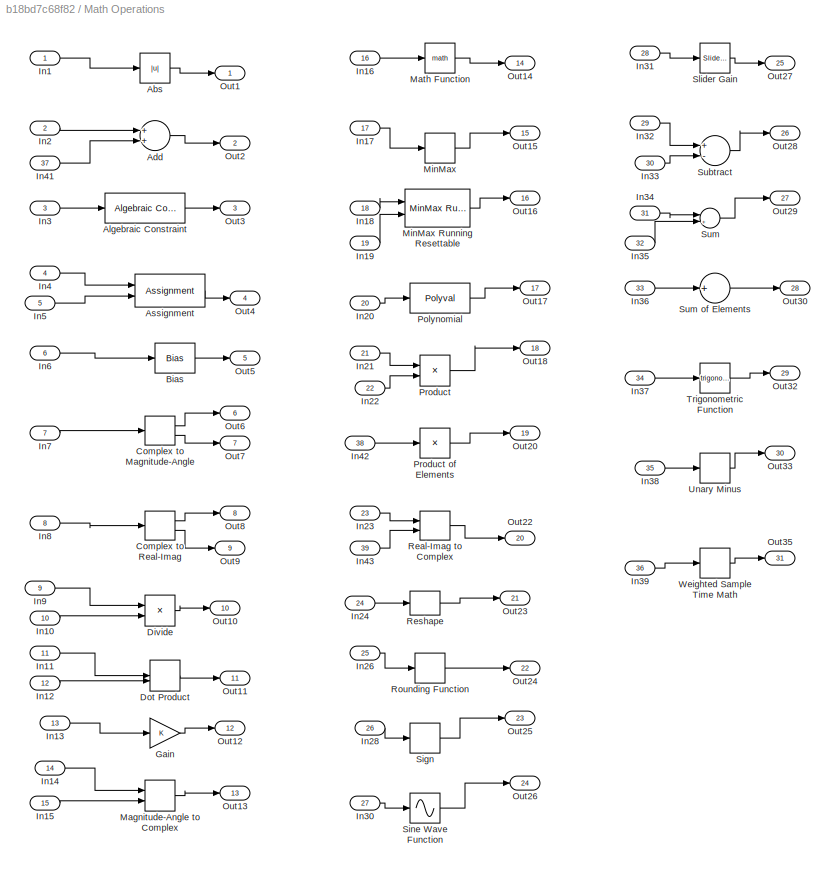
BLOCK [SubSystem] Math Operations
  FunctionWithSeparateData = off
  MaskHideContents = off
  MinAlgLoopOccurrences = off
  Opaque = off
  Ports = [39, 31]
  PropExecContextOutsideSubsystem = off
  RTWSystemCode = Auto
  RequestExecContextInheritance = off
BLOCK [Abs] Math Operations/Abs
  SaturateOnIntegerOverflow = off
BLOCK [Sum] Math Operations/Add
  InputSameDT = off
  OutDataTypeStr = Inherit: Inherit via internal rule
  Ports = [2, 1]
  SaturateOnIntegerOverflow = off
BLOCK [Reference] Math Operations/Algebraic Constraint  REF=simulink/Math
Operations/Algebraic Constraint
  Ports = [1, 1]
  SourceBlock = simulink/Math\nOperations/Algebraic Constraint
  SourceType = Algebraic Constraint
  z0 = 0
BLOCK [Assignment] Math Operations/Assignment
  IndexOptions = Index vector (dialog)
  Indices = 1
  OutputSizes = [1 1]
  Ports = [2, 1]
BLOCK [Bias] Math Operations/Bias
  Bias = 0.0
  SaturateOnIntegerOverflow = off
BLOCK [ComplexToMagnitudeAngle] Math Operations/Complex to Magnitude-Angle
  Ports = [1, 2]
BLOCK [ComplexToRealImag] Math Operations/Complex to Real-Imag
  Ports = [1, 2]
BLOCK [Product] Math Operations/Divide
  InputSameDT = off
  Inputs = */
  OutDataTypeStr = Inherit: Inherit via internal rule
  Ports = [2, 1]
  RndMeth = Floor
  SaturateOnIntegerOverflow = off
BLOCK [DotProduct] Math Operations/Dot Product
  OutDataTypeStr = Inherit: Inherit via internal rule
BLOCK [Gain] Math Operations/Gain
  OutDataTypeStr = Inherit: Inherit via internal rule
  ParamDataTypeStr = Inherit: Inherit via internal rule
  SaturateOnIntegerOverflow = off
BLOCK [Inport] Math Operations/In1
  IconDisplay = Port number
BLOCK [Inport] Math Operations/In10
  IconDisplay = Port number
  Port = 10
BLOCK [Inport] Math Operations/In11
  IconDisplay = Port number
  Port = 11
BLOCK [Inport] Math Operations/In12
  IconDisplay = Port number
  Port = 12
BLOCK [Inport] Math Operations/In13
  IconDisplay = Port number
  Port = 13
BLOCK [Inport] Math Operations/In14
  IconDisplay = Port number
  Port = 14
BLOCK [Inport] Math Operations/In15
  IconDisplay = Port number
  Port = 15
BLOCK [Inport] Math Operations/In16
  IconDisplay = Port number
  Port = 16
BLOCK [Inport] Math Operations/In17
  IconDisplay = Port number
  Port = 17
BLOCK [Inport] Math Operations/In18
  IconDisplay = Port number
  Port = 18
BLOCK [Inport] Math Operations/In19
  IconDisplay = Port number
  Port = 19
BLOCK [Inport] Math Operations/In2
  IconDisplay = Port number
  Port = 2
BLOCK [Inport] Math Operations/In20
  IconDisplay = Port number
  Port = 20
BLOCK [Inport] Math Operations/In21
  IconDisplay = Port number
  Port = 21
BLOCK [Inport] Math Operations/In22
  IconDisplay = Port number
  Port = 22
BLOCK [Inport] Math Operations/In23
  IconDisplay = Port number
  Port = 23
BLOCK [Inport] Math Operations/In24
  IconDisplay = Port number
  Port = 24
BLOCK [Inport] Math Operations/In26
  IconDisplay = Port number
  Port = 25
BLOCK [Inport] Math Operations/In28
  IconDisplay = Port number
  Port = 26
BLOCK [Inport] Math Operations/In3
  IconDisplay = Port number
  Port = 3
BLOCK [Inport] Math Operations/In30
  IconDisplay = Port number
  Port = 27
BLOCK [Inport] Math Operations/In31
  IconDisplay = Port number
  Port = 28
BLOCK [Inport] Math Operations/In32
  IconDisplay = Port number
  Port = 29
BLOCK [Inport] Math Operations/In33
  IconDisplay = Port number
  Port = 30
BLOCK [Inport] Math Operations/In34
  IconDisplay = Port number
  Port = 31
BLOCK [Inport] Math Operations/In35
  IconDisplay = Port number
  Port = 32
BLOCK [Inport] Math Operations/In36
  IconDisplay = Port number
  Port = 33
BLOCK [Inport] Math Operations/In37
  IconDisplay = Port number
  Port = 34
BLOCK [Inport] Math Operations/In38
  IconDisplay = Port number
  Port = 35
BLOCK [Inport] Math Operations/In39
  IconDisplay = Port number
  Port = 36
BLOCK [Inport] Math Operations/In4
  IconDisplay = Port number
  Port = 4
BLOCK [Inport] Math Operations/In41
  IconDisplay = Port number
  Port = 37
BLOCK [Inport] Math Operations/In42
  IconDisplay = Port number
  Port = 38
BLOCK [Inport] Math Operations/In43
  IconDisplay = Port number
  Port = 39
BLOCK [Inport] Math Operations/In5
  IconDisplay = Port number
  Port = 5
BLOCK [Inport] Math Operations/In6
  IconDisplay = Port number
  Port = 6
BLOCK [Inport] Math Operations/In7
  IconDisplay = Port number
  Port = 7
BLOCK [Inport] Math Operations/In8
  IconDisplay = Port number
  Port = 8
BLOCK [Inport] Math Operations/In9
  IconDisplay = Port number
  Port = 9
BLOCK [MagnitudeAngleToComplex] Math Operations/Magnitude-Angle to Complex
  Ports = [2, 1]
BLOCK [Math] Math Operations/Math Function
  Ports = [1, 1]
BLOCK [MinMax] Math Operations/MinMax
  InputSameDT = off
  Ports = [1, 1]
  SaturateOnIntegerOverflow = off
BLOCK [Reference] Math Operations/MinMax Running Resettable  REF=simulink/Math
Operations/MinMax
Running
Resettable
  Function = min
  Ports = [2, 1]
  SourceBlock = simulink/Math\nOperations/MinMax\nRunning\nResettable
  SourceType = MinMax Running Resettable
  vinit = 0.0
BLOCK [Outport] Math Operations/Out1
  IconDisplay = Port number
BLOCK [Outport] Math Operations/Out10
  IconDisplay = Port number
  Port = 10
BLOCK [Outport] Math Operations/Out11
  IconDisplay = Port number
  Port = 11
BLOCK [Outport] Math Operations/Out12
  IconDisplay = Port number
  Port = 12
BLOCK [Outport] Math Operations/Out13
  IconDisplay = Port number
  Port = 13
BLOCK [Outport] Math Operations/Out14
  IconDisplay = Port number
  Port = 14
BLOCK [Outport] Math Operations/Out15
  IconDisplay = Port number
  Port = 15
BLOCK [Outport] Math Operations/Out16
  IconDisplay = Port number
  Port = 16
BLOCK [Outport] Math Operations/Out17
  IconDisplay = Port number
  Port = 17
BLOCK [Outport] Math Operations/Out18
  IconDisplay = Port number
  Port = 18
BLOCK [Outport] Math Operations/Out2
  IconDisplay = Port number
  Port = 2
BLOCK [Outport] Math Operations/Out20
  IconDisplay = Port number
  Port = 19
BLOCK [Outport] Math Operations/Out22
  IconDisplay = Port number
  Port = 20
BLOCK [Outport] Math Operations/Out23
  IconDisplay = Port number
  Port = 21
BLOCK [Outport] Math Operations/Out24
  IconDisplay = Port number
  Port = 22
BLOCK [Outport] Math Operations/Out25
  IconDisplay = Port number
  Port = 23
BLOCK [Outport] Math Operations/Out26
  IconDisplay = Port number
  Port = 24
BLOCK [Outport] Math Operations/Out27
  IconDisplay = Port number
  Port = 25
BLOCK [Outport] Math Operations/Out28
  IconDisplay = Port number
  Port = 26
BLOCK [Outport] Math Operations/Out29
  IconDisplay = Port number
  Port = 27
BLOCK [Outport] Math Operations/Out3
  IconDisplay = Port number
  Port = 3
BLOCK [Outport] Math Operations/Out30
  IconDisplay = Port number
  Port = 28
BLOCK [Outport] Math Operations/Out32
  IconDisplay = Port number
  Port = 29
BLOCK [Outport] Math Operations/Out33
  IconDisplay = Port number
  Port = 30
BLOCK [Outport] Math Operations/Out35
  IconDisplay = Port number
  Port = 31
BLOCK [Outport] Math Operations/Out4
  IconDisplay = Port number
  Port = 4
BLOCK [Outport] Math Operations/Out5
  IconDisplay = Port number
  Port = 5
BLOCK [Outport] Math Operations/Out6
  IconDisplay = Port number
  Port = 6
BLOCK [Outport] Math Operations/Out7
  IconDisplay = Port number
  Port = 7
BLOCK [Outport] Math Operations/Out8
  IconDisplay = Port number
  Port = 8
BLOCK [Outport] Math Operations/Out9
  IconDisplay = Port number
  Port = 9
BLOCK [Polyval] Math Operations/Polynomial
  Coefs = [ +2.081618890e-019, -1.441693666e-014, +4.719686976e-010, -8.536869453e-006, +1.621573104e-001, -8.087801117e+001 ]
BLOCK [Product] Math Operations/Product
  InputSameDT = off
  OutDataTypeStr = Inherit: Inherit via internal rule
  Ports = [2, 1]
  SaturateOnIntegerOverflow = off
BLOCK [Product] Math Operations/Product of Elements
  InputSameDT = off
  Inputs = *
  OutDataTypeStr = Inherit: Inherit via internal rule
  Ports = [1, 1]
  RndMeth = Floor
  SaturateOnIntegerOverflow = off
BLOCK [RealImagToComplex] Math Operations/Real-Imag to Complex
  Ports = [2, 1]
BLOCK [Reshape] Math Operations/Reshape
  Ports = [1, 1]
BLOCK [Rounding] Math Operations/Rounding Function
BLOCK [Signum] Math Operations/Sign
BLOCK [Sin] Math Operations/Sine Wave Function
  Ports = [1, 1]
  SampleTime = 0
  TimeSource = Use external signal
BLOCK [Reference] Math Operations/Slider Gain  REF=simulink/Math
Operations/Slider
Gain
  Ports = [1, 1]
  SourceBlock = simulink/Math\nOperations/Slider\nGain
  SourceType = Slider Gain
  gain = 1
  high = 2
  low = 0
BLOCK [Sum] Math Operations/Subtract
  InputSameDT = off
  Inputs = +-
  OutDataTypeStr = Inherit: Inherit via internal rule
  Ports = [2, 1]
  SaturateOnIntegerOverflow = off
BLOCK [Sum] Math Operations/Sum
  IconShape = round
  InputSameDT = off
  Inputs = |++
  OutDataTypeStr = Inherit: Inherit via internal rule
  Ports = [2, 1]
  SaturateOnIntegerOverflow = off
BLOCK [Sum] Math Operations/Sum of Elements
  InputSameDT = off
  Inputs = +
  OutDataTypeStr = Inherit: Inherit via internal rule
  Ports = [1, 1]
  SaturateOnIntegerOverflow = off
BLOCK [Trigonometry] Math Operations/Trigonometric Function
  Ports = [1, 1]
BLOCK [UnaryMinus] Math Operations/Unary Minus
BLOCK [SampleTimeMath] Math Operations/Weighted Sample Time Math
BLOCK [SubSystem] Model Verification
  FunctionWithSeparateData = off
  MaskHideContents = off
  MinAlgLoopOccurrences = off
  Opaque = off
  Ports = [17]
  PropExecContextOutsideSubsystem = off
  RTWSystemCode = Auto
  RequestExecContextInheritance = off
BLOCK [Assertion] Model Verification/Assertion
BLOCK [Reference] Model Verification/Check Discrete Gradient  REF=simulink/Model
Verification/Check
Discrete Gradient
  Description = | du / dt | < 1
  Ports = [1]
  SourceBlock = simulink/Model\nVerification/Check\nDiscrete Gradient
  SourceType = Checks_Gradient
  enabled = on
  export = off
  gradient = 1
  icon = graphic
  stopWhenAssertionFail = on
BLOCK [Reference] Model Verification/Check Dynamic Gap  REF=simulink/Model
Verification/Check 
Dynamic Gap
  Description = sig < min || max < sig
  Ports = [3]
  SourceBlock = simulink/Model\nVerification/Check \nDynamic Gap
  SourceType = Checks_DGap
  enabled = on
  export = off
  icon = graphic
  stopWhenAssertionFail = on
BLOCK [Reference] Model Verification/Check Dynamic Lower Bound  REF=simulink/Model
Verification/Check Dynamic 
Lower Bound
  Description = min < sig
  Enabled = on
  Ports = [2]
  SourceBlock = simulink/Model\nVerification/Check Dynamic \nLower Bound
  SourceType = Checks_DMin
  export = off
  icon = graphic
  stopWhenAssertionFail = on
BLOCK [Reference] Model Verification/Check Dynamic Range  REF=simulink/Model
Verification/Check 
Dynamic Range
  Description = min < sig < max
  Ports = [3]
  SourceBlock = simulink/Model\nVerification/Check \nDynamic Range
  SourceType = Checks_DRange
  enabled = on
  export = off
  icon = graphic
  stopWhenAssertionFail = on
BLOCK [Reference] Model Verification/Check Dynamic Upper Bound  REF=simulink/Model
Verification/Check Dynamic 
Upper Bound
  Description = sig < max
  Ports = [2]
  SourceBlock = simulink/Model\nVerification/Check Dynamic \nUpper Bound
  SourceType = Checks_DMax
  enabled = on
  export = off
  icon = graphic
  stopWhenAssertionFail = on
BLOCK [Reference] Model Verification/Check Input Resolution  REF=simulink/Model
Verification/Check Input 
Resolution
  Description = -Inf < u < +Inf
  Ports = [1]
  SourceBlock = simulink/Model\nVerification/Check Input \nResolution
  SourceType = Checks_Resolution
  enabled = on
  export = off
  resolution = 1
  stopWhenAssertionFail = on
BLOCK [Reference] Model Verification/Check Static Gap  REF=simulink/Model
Verification/Check 
Static Gap
  Description = u <= 0 || 100 <= u
  Ports = [1]
  SourceBlock = simulink/Model\nVerification/Check \nStatic Gap
  SourceType = Checks_SGap
  enabled = on
  export = off
  icon = graphic
  max = 100
  max_included = on
  min = 0
  min_included = on
  stopWhenAssertionFail = on
BLOCK [Reference] Model Verification/Check Static Lower Bound  REF=simulink/Model
Verification/Check Static 
Lower Bound
  Description = 0 <= u
  Ports = [1]
  SourceBlock = simulink/Model\nVerification/Check Static \nLower Bound
  SourceType = Checks_SMin
  enabled = on
  export = off
  icon = graphic
  min = 0
  min_included = on
  stopWhenAssertionFail = on
BLOCK [Reference] Model Verification/Check Static Range  REF=simulink/Model
Verification/Check 
Static Range
  Description = 0 <= u <= 100
  Ports = [1]
  SourceBlock = simulink/Model\nVerification/Check \nStatic Range
  SourceType = Checks_SRange
  enabled = on
  export = off
  icon = graphic
  max = 100
  max_included = on
  min = 0
  min_included = on
  stopWhenAssertionFail = on
BLOCK [Reference] Model Verification/Check Static Upper Bound  REF=simulink/Model
Verification/Check Static 
Upper Bound
  Description = u <= 0
  Ports = [1]
  SourceBlock = simulink/Model\nVerification/Check Static \nUpper Bound
  SourceType = Checks_SMax
  enabled = on
  export = off
  icon = graphic
  max = 0
  max_included = on
  stopWhenAssertionFail = on
BLOCK [Inport] Model Verification/In1
  IconDisplay = Port number
BLOCK [Inport] Model Verification/In10
  IconDisplay = Port number
  Port = 10
BLOCK [Inport] Model Verification/In11
  IconDisplay = Port number
  Port = 11
BLOCK [Inport] Model Verification/In12
  IconDisplay = Port number
  Port = 12
BLOCK [Inport] Model Verification/In13
  IconDisplay = Port number
  Port = 13
BLOCK [Inport] Model Verification/In14
  IconDisplay = Port number
  Port = 14
BLOCK [Inport] Model Verification/In15
  IconDisplay = Port number
  Port = 15
BLOCK [Inport] Model Verification/In16
  IconDisplay = Port number
  Port = 16
BLOCK [Inport] Model Verification/In17
  IconDisplay = Port number
  Port = 17
BLOCK [Inport] Model Verification/In2
  IconDisplay = Port number
  Port = 2
BLOCK [Inport] Model Verification/In3
  IconDisplay = Port number
  Port = 3
BLOCK [Inport] Model Verification/In4
  IconDisplay = Port number
  Port = 4
BLOCK [Inport] Model Verification/In5
  IconDisplay = Port number
  Port = 5
BLOCK [Inport] Model Verification/In6
  IconDisplay = Port number
  Port = 6
BLOCK [Inport] Model Verification/In7
  IconDisplay = Port number
  Port = 7
BLOCK [Inport] Model Verification/In8
  IconDisplay = Port number
  Port = 8
BLOCK [Inport] Model Verification/In9
  IconDisplay = Port number
  Port = 9
BLOCK [SubSystem] Model-Wide Utilities
  FunctionWithSeparateData = off
  MaskHideContents = off
  MinAlgLoopOccurrences = off
  Opaque = off
  Ports = [1]
  PropExecContextOutsideSubsystem = off
  RTWSystemCode = Auto
  RequestExecContextInheritance = off
BLOCK [Reference] Model-Wide Utilities/Block Support Table  REF=simulink/Model-Wide
Utilities/Block Support
Table
  Ports = []
  SourceBlock = simulink/Model-Wide\nUtilities/Block Support\nTable
  SourceType = Block Support Table
BLOCK [Reference] Model-Wide Utilities/DocBlock  REF=simulink/Model-Wide
Utilities/DocBlock
  DocumentType = Text
  Ports = []
  SourceBlock = simulink/Model-Wide\nUtilities/DocBlock
  SourceType = DocBlock
  UserDataPersistent = on
BLOCK [Inport] Model-Wide Utilities/In1
  IconDisplay = Port number
BLOCK [Reference] Model-Wide Utilities/Model Info  REF=simulink/Model-Wide
Utilities/Model Info
  BlockCM = None
  DisplayStringWithTags = Model Info
  Frame = on
  HorizontalTextAlignment = Center
  InitialBlockCM = None
  LeftAlignmentValue = 0.5
  MaskDisplayString = Model Info
  Ports = []
  SourceBlock = simulink/Model-Wide\nUtilities/Model Info
  SourceBlockDiagram = ports_2013a
  SourceType = CMBlock
  TagMaxNumber = 20
BLOCK [Reference] Model-Wide Utilities/Timed-Based Linearization  REF=simulink/Model-Wide
Utilities/Timed-Based
Linearization
  LinearizationTime = 1
  Ports = []
  SampleTime = 0
  SourceBlock = simulink/Model-Wide\nUtilities/Timed-Based\nLinearization
  SourceType = Timed Linearization
BLOCK [Reference] Model-Wide Utilities/Trigger-Based Linearization  REF=simulink/Model-Wide
Utilities/Trigger-Based
Linearization
  Ports = [0, 0, 0, 1]
  SampleTime = 0
  SourceBlock = simulink/Model-Wide\nUtilities/Trigger-Based\nLinearization
  SourceType = Triggered Linearization
  TriggerType = rising
BLOCK [SubSystem] Signal Attributes
  FunctionWithSeparateData = off
  MaskHideContents = off
  MinAlgLoopOccurrences = off
  Opaque = off
  Ports = [17, 19]
  PropExecContextOutsideSubsystem = off
  RTWSystemCode = Auto
  RequestExecContextInheritance = off
BLOCK [DataTypeConversion] Signal Attributes/Data Type Conversion
  RndMeth = Floor
  SaturateOnIntegerOverflow = off
BLOCK [Reference] Signal Attributes/Data Type Conversion Inherited  REF=simulink/Signal
Attributes/Data Type
Conversion
Inherited
  ConvertRealWorld = Real World Value
  DoSatur = off
  Ports = [2, 1]
  RndMeth = Floor
  SourceBlock = simulink/Signal\nAttributes/Data Type\nConversion\nInherited
  SourceType = Conversion Inherited
BLOCK [DataTypeDuplicate] Signal Attributes/Data Type Duplicate
  Ports = [2]
BLOCK [Reference] Signal Attributes/Data Type Propagation  REF=simulink/Signal
Attributes/Data Type
Propagation
  BiasAdd = 0
  BiasBase = Bias1
  BiasMult = 1
  IfRefDouble = double
  IfRefSingle = single
  IsSigned = IsSigned1 or IsSigned2
  NumBitsAdd = 0
  NumBitsAllowFinal = 1:128
  NumBitsBase = max([NumBits1 NumBits2])
  NumBitsMult = 1
  Ports = [3]
  PropDataType = sfix(16)
  PropDataTypeMode = Inherit via propagation rule
  PropScaling = 2^-10
  PropScalingMode = Inherit via propagation rule
  SlopeAdd = 0
  SlopeBase = min([Slope1 Slope2])
  SlopeMult = 1
  SourceBlock = simulink/Signal\nAttributes/Data Type\nPropagation
  SourceType = Data Type Propagation
  ValuesUsedBestPrec = [5 -7]
BLOCK [Reference] Signal Attributes/Data Type Propagation Examples  REF=simulink/Signal
Attributes/Data Type
Propagation Examples
  Ports = []
  SourceBlock = simulink/Signal\nAttributes/Data Type\nPropagation Examples
  SourceType = Data Type Propagation Examples
BLOCK [Reference] Signal Attributes/Data Type Scaling Strip  REF=simulink/Signal
Attributes/Data Type
Scaling Strip
  Ports = [1, 1]
  SourceBlock = simulink/Signal\nAttributes/Data Type\nScaling Strip
  SourceType = Scaling Strip
BLOCK [InitialCondition] Signal Attributes/IC
BLOCK [Inport] Signal Attributes/In1
  IconDisplay = Port number
BLOCK [Inport] Signal Attributes/In10
  IconDisplay = Port number
  Port = 10
BLOCK [Inport] Signal Attributes/In11
  IconDisplay = Port number
  Port = 11
BLOCK [Inport] Signal Attributes/In12
  IconDisplay = Port number
  Port = 12
BLOCK [Inport] Signal Attributes/In13
  IconDisplay = Port number
  Port = 13
BLOCK [Inport] Signal Attributes/In14
  IconDisplay = Port number
  Port = 14
BLOCK [Inport] Signal Attributes/In15
  IconDisplay = Port number
  Port = 15
BLOCK [Inport] Signal Attributes/In16
  IconDisplay = Port number
  Port = 16
BLOCK [Inport] Signal Attributes/In17
  IconDisplay = Port number
  Port = 17
BLOCK [Inport] Signal Attributes/In2
  IconDisplay = Port number
  Port = 2
BLOCK [Inport] Signal Attributes/In3
  IconDisplay = Port number
  Port = 3
BLOCK [Inport] Signal Attributes/In4
  IconDisplay = Port number
  Port = 4
BLOCK [Inport] Signal Attributes/In5
  IconDisplay = Port number
  Port = 5
BLOCK [Inport] Signal Attributes/In6
  IconDisplay = Port number
  Port = 6
BLOCK [Inport] Signal Attributes/In7
  IconDisplay = Port number
  Port = 7
BLOCK [Inport] Signal Attributes/In8
  IconDisplay = Port number
  Port = 8
BLOCK [Inport] Signal Attributes/In9
  IconDisplay = Port number
  Port = 9
BLOCK [Outport] Signal Attributes/Out1
  IconDisplay = Port number
BLOCK [Outport] Signal Attributes/Out10
  IconDisplay = Port number
  Port = 10
BLOCK [Outport] Signal Attributes/Out11
  IconDisplay = Port number
  Port = 11
BLOCK [Outport] Signal Attributes/Out12
  IconDisplay = Port number
  Port = 12
BLOCK [Outport] Signal Attributes/Out13
  IconDisplay = Port number
  Port = 13
BLOCK [Outport] Signal Attributes/Out14
  IconDisplay = Port number
  Port = 14
BLOCK [Outport] Signal Attributes/Out15
  IconDisplay = Port number
  Port = 15
BLOCK [Outport] Signal Attributes/Out16
  IconDisplay = Port number
  Port = 16
BLOCK [Outport] Signal Attributes/Out17
  IconDisplay = Port number
  Port = 17
BLOCK [Outport] Signal Attributes/Out18
  IconDisplay = Port number
  Port = 18
BLOCK [Outport] Signal Attributes/Out19
  IconDisplay = Port number
  Port = 19
BLOCK [Outport] Signal Attributes/Out2
  IconDisplay = Port number
  Port = 2
BLOCK [Outport] Signal Attributes/Out3
  IconDisplay = Port number
  Port = 3
BLOCK [Outport] Signal Attributes/Out4
  IconDisplay = Port number
  Port = 4
BLOCK [Outport] Signal Attributes/Out5
  IconDisplay = Port number
  Port = 5
BLOCK [Outport] Signal Attributes/Out6
  IconDisplay = Port number
  Port = 6
BLOCK [Outport] Signal Attributes/Out7
  IconDisplay = Port number
  Port = 7
BLOCK [Outport] Signal Attributes/Out8
  IconDisplay = Port number
  Port = 8
BLOCK [Outport] Signal Attributes/Out9
  IconDisplay = Port number
  Port = 9
BLOCK [Probe] Signal Attributes/Probe
  Ports = [1, 5]
  ProbeFramedSignal = on
  ProbeSignalDimensions = on
BLOCK [Probe] Signal Attributes/Probe1
  Ports = [1, 5]
  ProbeFramedSignal = on
  ProbeSignalDimensions = on
BLOCK [RateTransition] Signal Attributes/Rate Transition
BLOCK [SignalConversion] Signal Attributes/Signal Conversion
  ConversionOutput = Contiguous copy
BLOCK [SignalSpecification] Signal Attributes/Signal Specification
BLOCK [SampleTimeMath] Signal Attributes/Weighted Sample Time
  TsampMathOp = Ts Only
BLOCK [Width] Signal Attributes/Width
BLOCK [SubSystem] Signal Routing
  FunctionWithSeparateData = off
  MaskHideContents = off
  MinAlgLoopOccurrences = off
  Opaque = off
  Ports = [24, 15]
  PropExecContextOutsideSubsystem = off
  RTWSystemCode = Auto
  RequestExecContextInheritance = off
BLOCK [BusAssignment] Signal Routing/Bus Assignment
  AssignedSignals = signal1
  Ports = [2, 1]
BLOCK [BusCreator] Signal Routing/Bus Creator
  DisplayOption = bar
  Inputs = 2
  Ports = [2, 1]
BLOCK [BusSelector] Signal Routing/Bus Selector
  OutputSignals = signal1,signal2
  Ports = [1, 2]
BLOCK [DataStoreMemory] Signal Routing/Data Store Memory
  ReadBeforeWriteMsg = warning
  WriteAfterReadMsg = warning
  WriteAfterWriteMsg = warning
BLOCK [DataStoreRead] Signal Routing/Data Store Read
  Ports = [0, 1]
  SampleTime = 0
BLOCK [DataStoreWrite] Signal Routing/Data Store Write
  Ports = [1]
BLOCK [Demux] Signal Routing/Demux
  DisplayOption = bar
  Outputs = 2
  Ports = [1, 2]
BLOCK [Reference] Signal Routing/Environment Controller  REF=simulink/Signal
Routing/Environment
Controller
  Ports = [2, 1]
  SourceBlock = simulink/Signal\nRouting/Environment\nController
  SourceType = Environment Controller
BLOCK [From] Signal Routing/From
  CloseFcn = tagdialog Close
BLOCK [Goto] Signal Routing/Goto
BLOCK [GotoTagVisibility] Signal Routing/Goto Tag Visibility
BLOCK [Inport] Signal Routing/In1
  IconDisplay = Port number
BLOCK [Inport] Signal Routing/In10
  IconDisplay = Port number
  Port = 10
BLOCK [Inport] Signal Routing/In11
  IconDisplay = Port number
  Port = 11
BLOCK [Inport] Signal Routing/In12
  IconDisplay = Port number
  Port = 12
BLOCK [Inport] Signal Routing/In13
  IconDisplay = Port number
  Port = 13
BLOCK [Inport] Signal Routing/In14
  IconDisplay = Port number
  Port = 14
BLOCK [Inport] Signal Routing/In15
  IconDisplay = Port number
  Port = 15
BLOCK [Inport] Signal Routing/In16
  IconDisplay = Port number
  Port = 16
BLOCK [Inport] Signal Routing/In17
  IconDisplay = Port number
  Port = 17
BLOCK [Inport] Signal Routing/In18
  IconDisplay = Port number
  Port = 18
BLOCK [Inport] Signal Routing/In19
  IconDisplay = Port number
  Port = 19
BLOCK [Inport] Signal Routing/In2
  IconDisplay = Port number
  Port = 2
BLOCK [Inport] Signal Routing/In20
  IconDisplay = Port number
  Port = 20
BLOCK [Inport] Signal Routing/In21
  IconDisplay = Port number
  Port = 21
BLOCK [Inport] Signal Routing/In22
  IconDisplay = Port number
  Port = 22
BLOCK [Inport] Signal Routing/In23
  IconDisplay = Port number
  Port = 23
BLOCK [Inport] Signal Routing/In24
  IconDisplay = Port number
  Port = 24
BLOCK [Inport] Signal Routing/In3
  IconDisplay = Port number
  Port = 3
BLOCK [Inport] Signal Routing/In4
  IconDisplay = Port number
  Port = 4
BLOCK [Inport] Signal Routing/In5
  IconDisplay = Port number
  Port = 5
BLOCK [Inport] Signal Routing/In6
  IconDisplay = Port number
  Port = 6
BLOCK [Inport] Signal Routing/In7
  IconDisplay = Port number
  Port = 7
BLOCK [Inport] Signal Routing/In8
  IconDisplay = Port number
  Port = 8
BLOCK [Inport] Signal Routing/In9
  IconDisplay = Port number
  Port = 9
BLOCK [MultiPortSwitch] Signal Routing/Index Vector
  DataPortOrder = Zero-based contiguous
  InputSameDT = off
  Inputs = 1
  Ports = [2, 1]
  SaturateOnIntegerOverflow = off
  zeroidx = on
BLOCK [ManualSwitch] Signal Routing/Manual Switch
BLOCK [MultiPortSwitch] Signal Routing/Multiport Switch
  InputSameDT = off
  Ports = [4, 1]
  SaturateOnIntegerOverflow = off
BLOCK [Mux] Signal Routing/Mux
  DisplayOption = bar
  Inputs = 2
  Ports = [2, 1]
BLOCK [Outport] Signal Routing/Out1
  IconDisplay = Port number
BLOCK [Outport] Signal Routing/Out10
  IconDisplay = Port number
  Port = 10
BLOCK [Outport] Signal Routing/Out11
  IconDisplay = Port number
  Port = 11
BLOCK [Outport] Signal Routing/Out12
  IconDisplay = Port number
  Port = 12
BLOCK [Outport] Signal Routing/Out13
  IconDisplay = Port number
  Port = 13
BLOCK [Outport] Signal Routing/Out14
  IconDisplay = Port number
  Port = 14
BLOCK [Outport] Signal Routing/Out15
  IconDisplay = Port number
  Port = 15
BLOCK [Outport] Signal Routing/Out2
  IconDisplay = Port number
  Port = 2
BLOCK [Outport] Signal Routing/Out3
  IconDisplay = Port number
  Port = 3
BLOCK [Outport] Signal Routing/Out4
  IconDisplay = Port number
  Port = 4
BLOCK [Outport] Signal Routing/Out5
  IconDisplay = Port number
  Port = 5
BLOCK [Outport] Signal Routing/Out6
  IconDisplay = Port number
  Port = 6
BLOCK [Outport] Signal Routing/Out7
  IconDisplay = Port number
  Port = 7
BLOCK [Outport] Signal Routing/Out8
  IconDisplay = Port number
  Port = 8
BLOCK [Outport] Signal Routing/Out9
  IconDisplay = Port number
  Port = 9
BLOCK [Selector] Signal Routing/Selector
  IndexOptions = Index vector (dialog)
  Indices = [1 3]
  InputPortWidth = 3
  OutputSizes = 1
  Ports = [1, 1]
BLOCK [Switch] Signal Routing/Switch
  InputSameDT = off
  SaturateOnIntegerOverflow = off
BLOCK [SubSystem] Sinks
  FunctionWithSeparateData = off
  MaskHideContents = off
  MinAlgLoopOccurrences = off
  Opaque = off
  Ports = [8]
  PropExecContextOutsideSubsystem = off
  RTWSystemCode = Auto
  RequestExecContextInheritance = off
BLOCK [Display] Sinks/Display
  Decimation = 1
  Ports = [1]
BLOCK [Scope] Sinks/Floating Scope
  DataFormat = StructureWithTime
  Floating = on
  NumInputPorts = 1
  Ports = []
  SampleTime = 0
  ShowLegends = off
BLOCK [Inport] Sinks/In1
  IconDisplay = Port number
BLOCK [Inport] Sinks/In2
  IconDisplay = Port number
  Port = 2
BLOCK [Inport] Sinks/In3
  IconDisplay = Port number
  Port = 3
BLOCK [Inport] Sinks/In4
  IconDisplay = Port number
  Port = 4
BLOCK [Inport] Sinks/In5
  IconDisplay = Port number
  Port = 5
BLOCK [Inport] Sinks/In6
  IconDisplay = Port number
  Port = 6
BLOCK [Inport] Sinks/In7
  IconDisplay = Port number
  Port = 7
BLOCK [Inport] Sinks/In8
  IconDisplay = Port number
  Port = 8
BLOCK [Scope] Sinks/Scope
  DataFormat = StructureWithTime
  Floating = off
  NumInputPorts = 1
  Ports = [1]
  SampleTime = 0
  SaveName = ScopeData2
  ShowLegends = off
BLOCK [Stop] Sinks/Stop Simulation
BLOCK [Terminator] Sinks/Terminator
BLOCK [ToFile] Sinks/To File
  Ports = [1]
BLOCK [ToWorkspace] Sinks/To Workspace
  MaxDataPoints = inf
  Ports = [1]
  SampleTime = -1
  SaveFormat = Structure
  VariableName = simout
BLOCK [Reference] Sinks/XY Graph  REF=simulink/Sinks/XY Graph
  Ports = [2]
  SourceBlock = simulink/Sinks/XY Graph
  SourceType = XY scope.
  st = -1
  xmax = 1
  xmin = -1
  ymax = 1
  ymin = -1
BLOCK [SubSystem] Sources
  FunctionWithSeparateData = off
  MaskHideContents = off
  MinAlgLoopOccurrences = off
  Opaque = off
  Ports = [0, 21]
  PropExecContextOutsideSubsystem = off
  RTWSystemCode = Auto
  RequestExecContextInheritance = off
BLOCK [Reference] Sources/Band-Limited White Noise  REF=simulink/Sources/Band-Limited
White Noise
  Cov = [0.1]
  Ports = [0, 1]
  SourceBlock = simulink/Sources/Band-Limited\nWhite Noise
  SourceType = Band-Limited White Noise.
  Ts = 0.1
  VectorParams1D = on
  seed = [23341]
BLOCK [Reference] Sources/Chirp Signal  REF=simulink/Sources/Chirp Signal
  Ports = [0, 1]
  SourceBlock = simulink/Sources/Chirp Signal
  SourceType = chirp
  T = 100
  VectorParams1D = on
  f1 = 0.1
  f2 = 1
BLOCK [Clock] Sources/Clock
BLOCK [Constant] Sources/Constant
BLOCK [Reference] Sources/Counter Free-Running  REF=simulink/Sources/Counter
Free-Running
  NumBits = 16
  Ports = [0, 1]
  SourceBlock = simulink/Sources/Counter\nFree-Running
  SourceType = Counter Free-Running
  tsamp = -1
BLOCK [Reference] Sources/Counter Limited  REF=simulink/Sources/Counter
Limited
  Ports = [0, 1]
  SourceBlock = simulink/Sources/Counter\nLimited
  SourceType = Counter Limited
  tsamp = -1
  uplimit = 7
BLOCK [DigitalClock] Sources/Digital Clock
BLOCK [FromFile] Sources/From File
  SampleTime = 0
BLOCK [FromWorkspace] Sources/From Workspace
  SampleTime = 0
  VariableName = simin
  ZeroCross = on
BLOCK [Ground] Sources/Ground
BLOCK [Outport] Sources/Out1
  IconDisplay = Port number
BLOCK [Outport] Sources/Out10
  IconDisplay = Port number
  Port = 10
BLOCK [Outport] Sources/Out11
  IconDisplay = Port number
  Port = 11
BLOCK [Outport] Sources/Out12
  IconDisplay = Port number
  Port = 12
BLOCK [Outport] Sources/Out13
  IconDisplay = Port number
  Port = 13
BLOCK [Outport] Sources/Out14
  IconDisplay = Port number
  Port = 14
BLOCK [Outport] Sources/Out15
  IconDisplay = Port number
  Port = 15
BLOCK [Outport] Sources/Out16
  IconDisplay = Port number
  Port = 16
BLOCK [Outport] Sources/Out17
  IconDisplay = Port number
  Port = 17
BLOCK [Outport] Sources/Out18
  IconDisplay = Port number
  Port = 18
BLOCK [Outport] Sources/Out19
  IconDisplay = Port number
  Port = 19
BLOCK [Outport] Sources/Out2
  IconDisplay = Port number
  Port = 2
BLOCK [Outport] Sources/Out20
  IconDisplay = Port number
  Port = 20
BLOCK [Outport] Sources/Out21
  IconDisplay = Port number
  Port = 21
BLOCK [Outport] Sources/Out3
  IconDisplay = Port number
  Port = 3
BLOCK [Outport] Sources/Out4
  IconDisplay = Port number
  Port = 4
BLOCK [Outport] Sources/Out5
  IconDisplay = Port number
  Port = 5
BLOCK [Outport] Sources/Out6
  IconDisplay = Port number
  Port = 6
BLOCK [Outport] Sources/Out7
  IconDisplay = Port number
  Port = 7
BLOCK [Outport] Sources/Out8
  IconDisplay = Port number
  Port = 8
BLOCK [Outport] Sources/Out9
  IconDisplay = Port number
  Port = 9
BLOCK [DiscretePulseGenerator] Sources/Pulse Generator
  Ports = [0, 1]
  PulseType = Time based
  PulseWidth = 50
BLOCK [Reference] Sources/Ramp  REF=simulink/Sources/Ramp
  Ports = [0, 1]
  SourceBlock = simulink/Sources/Ramp
  SourceType = Ramp
  VectorParams1D = on
  X0 = 0
  slope = 1
  start = 0
BLOCK [RandomNumber] Sources/Random Number
  SampleTime = 0
BLOCK [Reference] Sources/Repeating Sequence  REF=simulink/Sources/Repeating
Sequence
  Ports = [0, 1]
  SourceBlock = simulink/Sources/Repeating\nSequence
  SourceType = Repeating table
  rep_seq_t = [0 2]
  rep_seq_y = [0 2]
BLOCK [Reference] Sources/Repeating Sequence Interpolated  REF=simulink/Sources/Repeating
Sequence
Interpolated
  LockScale = off
  LookUpMeth = Interpolation-Use End Values
  OutDataType = float('double')
  OutDataTypeStr = float('double')
  OutMax = []
  OutMin = []
  OutScaling = 2^-10
  OutValues = [3 1 4 2 1].'
  OutputDataTypeScalingMode = Specify via dialog
  Ports = [0, 1]
  SourceBlock = simulink/Sources/Repeating\nSequence\nInterpolated
  SourceType = Repeating Sequence Interpolated
  TimeValues = [0 0.1 0.5 0.6 1].'
  tsamp = 0.01
BLOCK [Reference] Sources/Repeating Sequence Stair  REF=simulink/Sources/Repeating
Sequence
Stair
  ConRadixGroup = Best Precision: Vector-wise
  LockScale = off
  OutDataType = float('double')
  OutDataTypeStr = float('double')
  OutMax = []
  OutMin = []
  OutScaling = 2^-12
  OutValues = [3 1 4 2 1].'
  OutputDataTypeScalingMode = Specify via dialog
  Ports = [0, 1]
  SourceBlock = simulink/Sources/Repeating\nSequence\nStair
  SourceType = Repeating Sequence Stair
  tsamp = -1
BLOCK [SubSystem] Sources/Signal Builder
  ClipboardFcn = sigbuilder_block('clipboard');
  CloseFcn = sigbuilder_block('close');
  ContinueFcn = sigbuilder_block('continue')
  CopyFcn = sigbuilder_block('copy');
  DeleteFcn = sigbuilder_block('delete');
  FunctionWithSeparateData = off
  LoadFcn = sigbuilder_block('load');
  MaskHideContents = on
  MinAlgLoopOccurrences = off
  ModelCloseFcn = sigbuilder_block('modelClose');
  NameChangeFcn = sigbuilder_block('namechange');
  Opaque = off
  OpenFcn = sigbuilder_block('open',[437.6 199.2 550.4 400 ]);
  PauseFcn = sigbuilder_block('pause')
  Ports = [0, 1]
  PreSaveFcn = sigbuilder_block('preSave');
  PropExecContextOutsideSubsystem = off
  RTWSystemCode = Auto
  RequestExecContextInheritance = off
  StartFcn = sigbuilder_block('start');
  StopFcn = sigbuilder_block('stop');
  Tag = STV Subsys
BLOCK [Demux] Sources/Signal Builder/Demux
  Outputs = 1
  Ports = [1, 1]
  Tag = STV Demux
BLOCK [FromWorkspace] Sources/Signal Builder/FromWs
  SampleTime = 0
  Tag = STV FromWs
  VariableName = tuvar
  ZeroCross = on
BLOCK [Outport] Sources/Signal Builder/Signal 1
  IconDisplay = Port number
  Tag = STV Outport
BLOCK [SignalGenerator] Sources/Signal Generator
  Ports = [0, 1]
BLOCK [Sin] Sources/Sine Wave
  Ports = [0, 1]
  SampleTime = 0
BLOCK [Step] Sources/Step
  SampleTime = 0
BLOCK [UniformRandomNumber] Sources/Uniform Random Number
  SampleTime = 0
BLOCK [SubSystem] User-Defined Functions
  FunctionWithSeparateData = off
  MaskHideContents = off
  MinAlgLoopOccurrences = off
  Opaque = off
  Ports = [6, 6]
  PropExecContextOutsideSubsystem = off
  RTWSystemCode = Auto
  RequestExecContextInheritance = off
BLOCK [SubSystem] User-Defined Functions/Embedded MATLAB Function
  ErrorFcn = Stateflow.Translate.translate
  FunctionWithSeparateData = off
  MaskHideContents = off
  MinAlgLoopOccurrences = off
  Opaque = off
  PermitHierarchicalResolution = ParametersOnly
  Ports = [1, 1]
  PropExecContextOutsideSubsystem = off
  RTWSystemCode = Auto
  RequestExecContextInheritance = off
  SFBlockType = MATLAB Function
  TreatAsAtomicUnit = on
BLOCK [Demux] User-Defined Functions/Embedded MATLAB Function/ Demux 
  Outputs = 1
  Ports = [1, 1]
BLOCK [S-Function] User-Defined Functions/Embedded MATLAB Function/ SFunction 
  EnableBusSupport = off
  FunctionName = sf_sfun
  PortCounts = [1 2]
  Ports = [1, 2]
  Tag = Stateflow S-Function ports_2013a 2
BLOCK [Terminator] User-Defined Functions/Embedded MATLAB Function/ Terminator 
BLOCK [Inport] User-Defined Functions/Embedded MATLAB Function/u
  IconDisplay = Port number
BLOCK [Outport] User-Defined Functions/Embedded MATLAB Function/y
  IconDisplay = Port number
BLOCK [Fcn] User-Defined Functions/Fcn
  Expr = sin(u(1)*exp(2.3*(-u(2))))
BLOCK [Inport] User-Defined Functions/In1
  IconDisplay = Port number
BLOCK [Inport] User-Defined Functions/In2
  IconDisplay = Port number
  Port = 2
BLOCK [Inport] User-Defined Functions/In3
  IconDisplay = Port number
  Port = 3
BLOCK [Inport] User-Defined Functions/In4
  IconDisplay = Port number
  Port = 4
BLOCK [Inport] User-Defined Functions/In5
  IconDisplay = Port number
  Port = 5
BLOCK [Inport] User-Defined Functions/In6
  IconDisplay = Port number
  Port = 6
BLOCK [M-S-Function] User-Defined Functions/Level-2 M-file S-Function
  FunctionName = mlfile
  Ports = [1, 1]
BLOCK [MATLABFcn] User-Defined Functions/MATLAB Fcn
  Ports = [1, 1]
BLOCK [Outport] User-Defined Functions/Out1
  IconDisplay = Port number
BLOCK [Outport] User-Defined Functions/Out2
  IconDisplay = Port number
  Port = 2
BLOCK [Outport] User-Defined Functions/Out3
  IconDisplay = Port number
  Port = 3
BLOCK [Outport] User-Defined Functions/Out4
  IconDisplay = Port number
  Port = 4
BLOCK [Outport] User-Defined Functions/Out5
  IconDisplay = Port number
  Port = 5
BLOCK [Outport] User-Defined Functions/Out6
  IconDisplay = Port number
  Port = 6
BLOCK [S-Function] User-Defined Functions/S-Function
  EnableBusSupport = off
  Ports = [1, 1]
BLOCK [S-Function] User-Defined Functions/S-Function Builder
  CopyFcn = set_param(gcbh,'LinkStatus','none')
  EnableBusSupport = off
  OpenFcn = sfunctionwizard(gcbh)
  Ports = [1, 1]
BLOCK [Reference] User-Defined Functions/S-Function Examples  REF=simulink/User-Defined
Functions/S-Function Examples
  Ports = []
  SourceBlock = simulink/User-Defined\nFunctions/S-Function Examples
  SourceType = S-Function Examples
LINE Additional Math & Discrete/Additional Discrete/Fixed-Point State-Space:1 -> Additional Math & Discrete/Additional Discrete/Out1:1
LINE Additional Math & Discrete/Additional Discrete/In10:1 -> Additional Math & Discrete/Additional Discrete/Unit Delay Enabled External IC:3
LINE Additional Math & Discrete/Additional Discrete/In11:1 -> Additional Math & Discrete/Additional Discrete/Unit Delay Enabled Resettable:1
LINE Additional Math & Discrete/Additional Discrete/In12:1 -> Additional Math & Discrete/Additional Discrete/Unit Delay Enabled Resettable:2
LINE Additional Math & Discrete/Additional Discrete/In13:1 -> Additional Math & Discrete/Additional Discrete/Unit Delay Enabled Resettable:3
LINE Additional Math & Discrete/Additional Discrete/In14:1 -> Additional Math & Discrete/Additional Discrete/Unit Delay Enabled Resettable External IC:1
LINE Additional Math & Discrete/Additional Discrete/In15:1 -> Additional Math & Discrete/Additional Discrete/Unit Delay Enabled Resettable External IC:2
LINE Additional Math & Discrete/Additional Discrete/In16:1 -> Additional Math & Discrete/Additional Discrete/Unit Delay Enabled Resettable External IC:3
LINE Additional Math & Discrete/Additional Discrete/In17:1 -> Additional Math & Discrete/Additional Discrete/Unit Delay Enabled Resettable External IC:4
LINE Additional Math & Discrete/Additional Discrete/In18:1 -> Additional Math & Discrete/Additional Discrete/Unit Delay External IC:1
LINE Additional Math & Discrete/Additional Discrete/In19:1 -> Additional Math & Discrete/Additional Discrete/Unit Delay External IC:2
LINE Additional Math & Discrete/Additional Discrete/In1:1 -> Additional Math & Discrete/Additional Discrete/Fixed-Point State-Space:1
LINE Additional Math & Discrete/Additional Discrete/In20:1 -> Additional Math & Discrete/Additional Discrete/Unit Delay Resettable:1
LINE Additional Math & Discrete/Additional Discrete/In21:1 -> Additional Math & Discrete/Additional Discrete/Unit Delay Resettable:2
LINE Additional Math & Discrete/Additional Discrete/In22:1 -> Additional Math & Discrete/Additional Discrete/Unit Delay Resettable External IC:1
LINE Additional Math & Discrete/Additional Discrete/In23:1 -> Additional Math & Discrete/Additional Discrete/Unit Delay Resettable External IC:2
LINE Additional Math & Discrete/Additional Discrete/In24:1 -> Additional Math & Discrete/Additional Discrete/Unit Delay Resettable External IC:3
LINE Additional Math & Discrete/Additional Discrete/In25:1 -> Additional Math & Discrete/Additional Discrete/Unit Delay With Preview Enabled:1
LINE Additional Math & Discrete/Additional Discrete/In26:1 -> Additional Math & Discrete/Additional Discrete/Unit Delay With Preview Enabled:2
LINE Additional Math & Discrete/Additional Discrete/In27:1 -> Additional Math & Discrete/Additional Discrete/Unit Delay With Preview Enabled Resettable:1
LINE Additional Math & Discrete/Additional Discrete/In28:1 -> Additional Math & Discrete/Additional Discrete/Unit Delay With Preview Enabled Resettable:2
LINE Additional Math & Discrete/Additional Discrete/In29:1 -> Additional Math & Discrete/Additional Discrete/Unit Delay With Preview Enabled Resettable:3
LINE Additional Math & Discrete/Additional Discrete/In2:1 -> Additional Math & Discrete/Additional Discrete/Transfer Fcn Direct Form II:1
LINE Additional Math & Discrete/Additional Discrete/In30:1 -> Additional Math & Discrete/Additional Discrete/Unit Delay With Preview Enabled Resettable External RV:1
LINE Additional Math & Discrete/Additional Discrete/In31:1 -> Additional Math & Discrete/Additional Discrete/Unit Delay With Preview Enabled Resettable External RV:2
LINE Additional Math & Discrete/Additional Discrete/In32:1 -> Additional Math & Discrete/Additional Discrete/Unit Delay With Preview Enabled Resettable External RV:3
LINE Additional Math & Discrete/Additional Discrete/In33:1 -> Additional Math & Discrete/Additional Discrete/Unit Delay With Preview Enabled Resettable External RV:4
LINE Additional Math & Discrete/Additional Discrete/In34:1 -> Additional Math & Discrete/Additional Discrete/Unit Delay With Preview Resettable:1
LINE Additional Math & Discrete/Additional Discrete/In35:1 -> Additional Math & Discrete/Additional Discrete/Unit Delay With Preview Resettable:2
LINE Additional Math & Discrete/Additional Discrete/In36:1 -> Additional Math & Discrete/Additional Discrete/Unit Delay With Preview Resettable External RV:1
LINE Additional Math & Discrete/Additional Discrete/In37:1 -> Additional Math & Discrete/Additional Discrete/Unit Delay With Preview Resettable External RV:2
LINE Additional Math & Discrete/Additional Discrete/In38:1 -> Additional Math & Discrete/Additional Discrete/Unit Delay With Preview Resettable External RV:3
LINE Additional Math & Discrete/Additional Discrete/In3:1 -> Additional Math & Discrete/Additional Discrete/Transfer Fcn Direct Form II Time Varying:1
LINE Additional Math & Discrete/Additional Discrete/In4:1 -> Additional Math & Discrete/Additional Discrete/Transfer Fcn Direct Form II Time Varying:2
LINE Additional Math & Discrete/Additional Discrete/In5:1 -> Additional Math & Discrete/Additional Discrete/Transfer Fcn Direct Form II Time Varying:3
LINE Additional Math & Discrete/Additional Discrete/In6:1 -> Additional Math & Discrete/Additional Discrete/Unit Delay Enabled:1
LINE Additional Math & Discrete/Additional Discrete/In7:1 -> Additional Math & Discrete/Additional Discrete/Unit Delay Enabled:2
LINE Additional Math & Discrete/Additional Discrete/In8:1 -> Additional Math & Discrete/Additional Discrete/Unit Delay Enabled External IC:1
LINE Additional Math & Discrete/Additional Discrete/In9:1 -> Additional Math & Discrete/Additional Discrete/Unit Delay Enabled External IC:2
LINE Additional Math & Discrete/Additional Discrete/Transfer Fcn Direct Form II Time Varying:1 -> Additional Math & Discrete/Additional Discrete/Out3:1
LINE Additional Math & Discrete/Additional Discrete/Transfer Fcn Direct Form II:1 -> Additional Math & Discrete/Additional Discrete/Out2:1
LINE Additional Math & Discrete/Additional Discrete/Unit Delay Enabled External IC:1 -> Additional Math & Discrete/Additional Discrete/Out5:1
LINE Additional Math & Discrete/Additional Discrete/Unit Delay Enabled Resettable External IC:1 -> Additional Math & Discrete/Additional Discrete/Out7:1
LINE Additional Math & Discrete/Additional Discrete/Unit Delay Enabled Resettable:1 -> Additional Math & Discrete/Additional Discrete/Out6:1
LINE Additional Math & Discrete/Additional Discrete/Unit Delay Enabled:1 -> Additional Math & Discrete/Additional Discrete/Out4:1
LINE Additional Math & Discrete/Additional Discrete/Unit Delay External IC:1 -> Additional Math & Discrete/Additional Discrete/Out8:1
LINE Additional Math & Discrete/Additional Discrete/Unit Delay Resettable External IC:1 -> Additional Math & Discrete/Additional Discrete/Out10:1
LINE Additional Math & Discrete/Additional Discrete/Unit Delay Resettable:1 -> Additional Math & Discrete/Additional Discrete/Out9:1
LINE Additional Math & Discrete/Additional Discrete/Unit Delay With Preview Enabled Resettable External RV:1 -> Additional Math & Discrete/Additional Discrete/Out15:1
LINE Additional Math & Discrete/Additional Discrete/Unit Delay With Preview Enabled Resettable External RV:2 -> Additional Math & Discrete/Additional Discrete/Out16:1
LINE Additional Math & Discrete/Additional Discrete/Unit Delay With Preview Enabled Resettable:1 -> Additional Math & Discrete/Additional Discrete/Out13:1
LINE Additional Math & Discrete/Additional Discrete/Unit Delay With Preview Enabled Resettable:2 -> Additional Math & Discrete/Additional Discrete/Out14:1
LINE Additional Math & Discrete/Additional Discrete/Unit Delay With Preview Enabled:1 -> Additional Math & Discrete/Additional Discrete/Out11:1
LINE Additional Math & Discrete/Additional Discrete/Unit Delay With Preview Enabled:2 -> Additional Math & Discrete/Additional Discrete/Out12:1
LINE Additional Math & Discrete/Additional Discrete/Unit Delay With Preview Resettable External RV:1 -> Additional Math & Discrete/Additional Discrete/Out19:1
LINE Additional Math & Discrete/Additional Discrete/Unit Delay With Preview Resettable External RV:2 -> Additional Math & Discrete/Additional Discrete/Out20:1
LINE Additional Math & Discrete/Additional Discrete/Unit Delay With Preview Resettable:1 -> Additional Math & Discrete/Additional Discrete/Out17:1
LINE Additional Math & Discrete/Additional Discrete/Unit Delay With Preview Resettable:2 -> Additional Math & Discrete/Additional Discrete/Out18:1
LINE Additional Math & Discrete/Additional Math/Decrement Real World:1 -> Additional Math & Discrete/Additional Math/Out2:1
LINE Additional Math & Discrete/Additional Math/Decrement Stored Integer:1 -> Additional Math & Discrete/Additional Math/Out3:1
LINE Additional Math & Discrete/Additional Math/Decrement Time To Zero:1 -> Additional Math & Discrete/Additional Math/Out4:1
LINE Additional Math & Discrete/Additional Math/Decrement To Zero:1 -> Additional Math & Discrete/Additional Math/Out5:1
LINE Additional Math & Discrete/Additional Math/In1:1 -> Additional Math & Discrete/Additional Math/Decrement Real World:1
LINE Additional Math & Discrete/Additional Math/In2:1 -> Additional Math & Discrete/Additional Math/Decrement Stored Integer:1
LINE Additional Math & Discrete/Additional Math/In3:1 -> Additional Math & Discrete/Additional Math/Decrement Time To Zero:1
LINE Additional Math & Discrete/Additional Math/In4:1 -> Additional Math & Discrete/Additional Math/Decrement To Zero:1
LINE Additional Math & Discrete/Additional Math/In5:1 -> Additional Math & Discrete/Additional Math/Increment Real World:1
LINE Additional Math & Discrete/Additional Math/In6:1 -> Additional Math & Discrete/Additional Math/Increment Stored Integer:1
LINE Additional Math & Discrete/Additional Math/Increment Real World:1 -> Additional Math & Discrete/Additional Math/Out6:1
LINE Additional Math & Discrete/Additional Math/Increment Stored Integer:1 -> Additional Math & Discrete/Additional Math/Out7:1
LINE Commonly Used/Bus Creator:1 -> Commonly Used/Out1:1
LINE Commonly Used/Bus Selector:1 -> Commonly Used/Out3:1
LINE Commonly Used/Bus Selector:2 -> Commonly Used/Out4:1
LINE Commonly Used/Constant:1 -> Commonly Used/Out2:1
LINE Commonly Used/Data Type Conversion:1 -> Commonly Used/Out5:1
LINE Commonly Used/Demux1:1 -> Commonly Used/Out8:1
LINE Commonly Used/Demux1:2 -> Commonly Used/Out9:1
LINE Commonly Used/Demux:1 -> Commonly Used/Out6:1
LINE Commonly Used/Demux:2 -> Commonly Used/Out7:1
LINE Commonly Used/Discrete-Time Integrator:1 -> Commonly Used/Out10:1
LINE Commonly Used/Gain:1 -> Commonly Used/Out11:1
LINE Commonly Used/Ground:1 -> Commonly Used/Out12:1
LINE Commonly Used/In10:1 -> Commonly Used/Logical Operator:1
LINE Commonly Used/In11:1 -> Commonly Used/Logical Operator:2
LINE Commonly Used/In12:1 -> Commonly Used/Product:1
LINE Commonly Used/In13:1 -> Commonly Used/Product:2
LINE Commonly Used/In14:1 -> Commonly Used/Relational Operator:1
LINE Commonly Used/In15:1 -> Commonly Used/Relational Operator:2
LINE Commonly Used/In16:1 -> Commonly Used/Saturation:1
LINE Commonly Used/In17:1 -> Commonly Used/Scope:1
LINE Commonly Used/In18:1 -> Commonly Used/Subsystem:1
LINE Commonly Used/In19:1 -> Commonly Used/Sum:1
LINE Commonly Used/In1:1 -> Commonly Used/Bus Creator:1
LINE Commonly Used/In20:1 -> Commonly Used/Sum:2
LINE Commonly Used/In21:1 -> Commonly Used/Switch:1
LINE Commonly Used/In22:1 -> Commonly Used/Switch:2
LINE Commonly Used/In23:1 -> Commonly Used/Switch:3
LINE Commonly Used/In24:1 -> Commonly Used/Terminator:1
LINE Commonly Used/In25:1 -> Commonly Used/Unit Delay:1
LINE Commonly Used/In2:1 -> Commonly Used/Bus Creator:2
LINE Commonly Used/In3:1 -> Commonly Used/Bus Selector:1
LINE Commonly Used/In4:1 -> Commonly Used/Data Type Conversion:1
LINE Commonly Used/In5:1 -> Commonly Used/Demux:1
LINE Commonly Used/In6:1 -> Commonly Used/Demux1:1
LINE Commonly Used/In7:1 -> Commonly Used/Discrete-Time Integrator:1
LINE Commonly Used/In8:1 -> Commonly Used/Gain:1
LINE Commonly Used/In9:1 -> Commonly Used/Integrator:1
LINE Commonly Used/Integrator:1 -> Commonly Used/Out13:1
LINE Commonly Used/Logical Operator:1 -> Commonly Used/Out14:1
LINE Commonly Used/Product:1 -> Commonly Used/Out15:1
LINE Commonly Used/Relational Operator:1 -> Commonly Used/Out16:1
LINE Commonly Used/Saturation:1 -> Commonly Used/Out17:1
LINE Commonly Used/Subsystem/In1:1 -> Commonly Used/Subsystem/Out1:1
LINE Commonly Used/Subsystem:1 -> Commonly Used/Out18:1
LINE Commonly Used/Sum:1 -> Commonly Used/Out19:1
LINE Commonly Used/Switch:1 -> Commonly Used/Out20:1
LINE Commonly Used/Unit Delay:1 -> Commonly Used/Out21:1
LINE Continuous/Derivative:1 -> Continuous/Out1:1
LINE Continuous/In10:1 -> Continuous/Zero-Pole:1
LINE Continuous/In1:1 -> Continuous/Derivative:1
LINE Continuous/In2:1 -> Continuous/Integrator:1
LINE Continuous/In3:1 -> Continuous/State-Space:1
LINE Continuous/In4:1 -> Continuous/Transfer Fcn:1
LINE Continuous/In5:1 -> Continuous/Transport Delay:1
LINE Continuous/In6:1 -> Continuous/Variable Time Delay:1
LINE Continuous/In7:1 -> Continuous/Variable Time Delay:2
LINE Continuous/In8:1 -> Continuous/Variable Transport Delay:1
LINE Continuous/In9:1 -> Continuous/Variable Transport Delay:2
LINE Continuous/Integrator:1 -> Continuous/Out2:1
LINE Continuous/State-Space:1 -> Continuous/Out3:1
LINE Continuous/Transfer Fcn:1 -> Continuous/Out4:1
LINE Continuous/Transport Delay:1 -> Continuous/Out5:1
LINE Continuous/Variable Time Delay:1 -> Continuous/Out6:1
LINE Continuous/Variable Transport Delay:1 -> Continuous/Out7:1
LINE Continuous/Zero-Pole:1 -> Continuous/Out8:1
LINE Discontinuities/Backlash:1 -> Discontinuities/Out1:1
LINE Discontinuities/Coulomb & Viscous Friction:1 -> Discontinuities/Out2:1
LINE Discontinuities/Dead Zone Dynamic:1 -> Discontinuities/Out4:1
LINE Discontinuities/Dead Zone:1 -> Discontinuities/Out3:1
LINE Discontinuities/Hit Crossing:1 -> Discontinuities/Out5:1
LINE Discontinuities/In10:1 -> Discontinuities/Rate Limiter Dynamic:1
LINE Discontinuities/In11:1 -> Discontinuities/Rate Limiter Dynamic:2
LINE Discontinuities/In12:1 -> Discontinuities/Rate Limiter Dynamic:3
LINE Discontinuities/In13:1 -> Discontinuities/Relay:1
LINE Discontinuities/In14:1 -> Discontinuities/Saturation:1
LINE Discontinuities/In15:1 -> Discontinuities/Saturation Dynamic:1
LINE Discontinuities/In16:1 -> Discontinuities/Saturation Dynamic:2
LINE Discontinuities/In17:1 -> Discontinuities/Saturation Dynamic:3
LINE Discontinuities/In18:1 -> Discontinuities/Wrap To Zero:1
LINE Discontinuities/In1:1 -> Discontinuities/Backlash:1
LINE Discontinuities/In2:1 -> Discontinuities/Coulomb & Viscous Friction:1
LINE Discontinuities/In3:1 -> Discontinuities/Dead Zone:1
LINE Discontinuities/In4:1 -> Discontinuities/Dead Zone Dynamic:1
LINE Discontinuities/In5:1 -> Discontinuities/Dead Zone Dynamic:2
LINE Discontinuities/In6:1 -> Discontinuities/Dead Zone Dynamic:3
LINE Discontinuities/In7:1 -> Discontinuities/Hit Crossing:1
LINE Discontinuities/In8:1 -> Discontinuities/Quantizer:1
LINE Discontinuities/In9:1 -> Discontinuities/Rate Limiter:1
LINE Discontinuities/Quantizer:1 -> Discontinuities/Out6:1
LINE Discontinuities/Rate Limiter Dynamic:1 -> Discontinuities/Out8:1
LINE Discontinuities/Rate Limiter:1 -> Discontinuities/Out7:1
LINE Discontinuities/Relay:1 -> Discontinuities/Out9:1
LINE Discontinuities/Saturation Dynamic:1 -> Discontinuities/Out11:1
LINE Discontinuities/Saturation:1 -> Discontinuities/Out10:1
LINE Discontinuities/Wrap To Zero:1 -> Discontinuities/Out12:1
LINE Discrete/Difference:1 -> Discrete/Out1:1
LINE Discrete/Discrete Derivative:1 -> Discrete/Out2:1
LINE Discrete/Discrete Filter:1 -> Discrete/Out3:1
LINE Discrete/Discrete State-Space:1 -> Discrete/Out4:1
LINE Discrete/Discrete Transfer Fcn:1 -> Discrete/Out5:1
LINE Discrete/Discrete Zero-Pole:1 -> Discrete/Out6:1
LINE Discrete/Discrete-Time Integrator:1 -> Discrete/Out7:1
LINE Discrete/First-Order Hold:1 -> Discrete/Out8:1
LINE Discrete/In10:1 -> Discrete/Memory:1
LINE Discrete/In11:1 -> Discrete/Tapped Delay:1
LINE Discrete/In12:1 -> Discrete/Transfer Fcn First Order:1
LINE Discrete/In13:1 -> Discrete/Transfer Fcn Lead or Lag:1
LINE Discrete/In14:1 -> Discrete/Transfer Fcn Real Zero:1
LINE Discrete/In15:1 -> Discrete/Unit Delay:1
LINE Discrete/In16:1 -> Discrete/Weighted Moving Average:1
LINE Discrete/In17:1 -> Discrete/Zero-Order Hold:1
LINE Discrete/In1:1 -> Discrete/Difference:1
LINE Discrete/In2:1 -> Discrete/Discrete Derivative:1
LINE Discrete/In3:1 -> Discrete/Discrete Filter:1
LINE Discrete/In4:1 -> Discrete/Discrete State-Space:1
LINE Discrete/In5:1 -> Discrete/Discrete Transfer Fcn:1
LINE Discrete/In6:1 -> Discrete/Discrete Zero-Pole:1
LINE Discrete/In7:1 -> Discrete/Discrete-Time Integrator:1
LINE Discrete/In8:1 -> Discrete/First-Order Hold:1
LINE Discrete/In9:1 -> Discrete/Integer Delay:1
LINE Discrete/Integer Delay:1 -> Discrete/Out9:1
LINE Discrete/Memory:1 -> Discrete/Out10:1
LINE Discrete/Tapped Delay:1 -> Discrete/Out11:1
LINE Discrete/Transfer Fcn First Order:1 -> Discrete/Out12:1
LINE Discrete/Transfer Fcn Lead or Lag:1 -> Discrete/Out13:1
LINE Discrete/Transfer Fcn Real Zero:1 -> Discrete/Out14:1
LINE Discrete/Unit Delay:1 -> Discrete/Out15:1
LINE Discrete/Weighted Moving Average:1 -> Discrete/Out16:1
LINE Discrete/Zero-Order Hold:1 -> Discrete/Out17:1
LINE Logic and Bit Operations/Bit Clear:1 -> Logic and Bit Operations/Out1:1
LINE Logic and Bit Operations/Bit Set:1 -> Logic and Bit Operations/Out2:1
LINE Logic and Bit Operations/Bitwise Operator:1 -> Logic and Bit Operations/Out3:1
LINE Logic and Bit Operations/Combinatorial Logic:1 -> Logic and Bit Operations/Out4:1
LINE Logic and Bit Operations/Compare To Constant:1 -> Logic and Bit Operations/Out5:1
LINE Logic and Bit Operations/Compare To Zero:1 -> Logic and Bit Operations/Out6:1
LINE Logic and Bit Operations/Detect Change:1 -> Logic and Bit Operations/Out7:1
LINE Logic and Bit Operations/Detect Decrease:1 -> Logic and Bit Operations/Out8:1
LINE Logic and Bit Operations/Detect Fall Negative:1 -> Logic and Bit Operations/Out10:1
LINE Logic and Bit Operations/Detect Fall Nonpositive:1 -> Logic and Bit Operations/Out11:1
LINE Logic and Bit Operations/Detect Increase:1 -> Logic and Bit Operations/Out12:1
LINE Logic and Bit Operations/Detect Rise Nonnegative:1 -> Logic and Bit Operations/Out13:1
LINE Logic and Bit Operations/Detect Rise Positive:1 -> Logic and Bit Operations/Out15:1
LINE Logic and Bit Operations/Extract Bits:1 -> Logic and Bit Operations/Out16:1
LINE Logic and Bit Operations/In10:1 -> Logic and Bit Operations/Detect Fall Nonpositive:1
LINE Logic and Bit Operations/In11:1 -> Logic and Bit Operations/Detect Increase:1
LINE Logic and Bit Operations/In12:1 -> Logic and Bit Operations/Detect Rise Nonnegative:1
LINE Logic and Bit Operations/In13:1 -> Logic and Bit Operations/Interval Test Dynamic:1
LINE Logic and Bit Operations/In14:1 -> Logic and Bit Operations/Detect Rise Positive:1
LINE Logic and Bit Operations/In15:1 -> Logic and Bit Operations/Extract Bits:1
LINE Logic and Bit Operations/In16:1 -> Logic and Bit Operations/Interval Test:1
LINE Logic and Bit Operations/In17:1 -> Logic and Bit Operations/Interval Test Dynamic:2
LINE Logic and Bit Operations/In18:1 -> Logic and Bit Operations/Logical Operator:1
LINE Logic and Bit Operations/In19:1 -> Logic and Bit Operations/Shift Arithmetic:1
LINE Logic and Bit Operations/In1:1 -> Logic and Bit Operations/Bit Clear:1
LINE Logic and Bit Operations/In20:1 -> Logic and Bit Operations/Relational Operator:1
LINE Logic and Bit Operations/In21:1 -> Logic and Bit Operations/Interval Test Dynamic:3
LINE Logic and Bit Operations/In22:1 -> Logic and Bit Operations/Logical Operator:2
LINE Logic and Bit Operations/In23:1 -> Logic and Bit Operations/Relational Operator:2
LINE Logic and Bit Operations/In2:1 -> Logic and Bit Operations/Bit Set:1
LINE Logic and Bit Operations/In3:1 -> Logic and Bit Operations/Bitwise Operator:1
LINE Logic and Bit Operations/In4:1 -> Logic and Bit Operations/Combinatorial Logic:1
LINE Logic and Bit Operations/In5:1 -> Logic and Bit Operations/Compare To Constant:1
LINE Logic and Bit Operations/In6:1 -> Logic and Bit Operations/Compare To Zero:1
LINE Logic and Bit Operations/In7:1 -> Logic and Bit Operations/Detect Change:1
LINE Logic and Bit Operations/In8:1 -> Logic and Bit Operations/Detect Decrease:1
LINE Logic and Bit Operations/In9:1 -> Logic and Bit Operations/Detect Fall Negative:1
LINE Logic and Bit Operations/Interval Test Dynamic:1 -> Logic and Bit Operations/Out18:1
LINE Logic and Bit Operations/Interval Test:1 -> Logic and Bit Operations/Out17:1
LINE Logic and Bit Operations/Logical Operator:1 -> Logic and Bit Operations/Out19:1
LINE Logic and Bit Operations/Relational Operator:1 -> Logic and Bit Operations/Out20:1
LINE Logic and Bit Operations/Shift Arithmetic:1 -> Logic and Bit Operations/Out9:1
LINE Lookup Tables/Cosine:1 -> Lookup Tables/Out1:1
LINE Lookup Tables/Direct Lookup Table (n-D):1 -> Lookup Tables/Out2:1
LINE Lookup Tables/In10:1 -> Lookup Tables/Lookup Table (n-D):2
LINE Lookup Tables/In11:1 -> Lookup Tables/Lookup Table Dynamic:1
LINE Lookup Tables/In12:1 -> Lookup Tables/Lookup Table Dynamic:2
LINE Lookup Tables/In13:1 -> Lookup Tables/Lookup Table Dynamic:3
LINE Lookup Tables/In14:1 -> Lookup Tables/PreLookup Index Search:1
LINE Lookup Tables/In15:1 -> Lookup Tables/Sine:1
LINE Lookup Tables/In1:1 -> Lookup Tables/Cosine:1
LINE Lookup Tables/In2:1 -> Lookup Tables/Direct Lookup Table (n-D):1
LINE Lookup Tables/In3:1 -> Lookup Tables/Direct Lookup Table (n-D):2
LINE Lookup Tables/In4:1 -> Lookup Tables/Interpolation (n-D) using PreLookup:1
LINE Lookup Tables/In5:1 -> Lookup Tables/Interpolation (n-D) using PreLookup:2
LINE Lookup Tables/In6:1 -> Lookup Tables/Lookup Table:1
LINE Lookup Tables/In7:1 -> Lookup Tables/Lookup Table (2-D):1
LINE Lookup Tables/In8:1 -> Lookup Tables/Lookup Table (2-D):2
LINE Lookup Tables/In9:1 -> Lookup Tables/Lookup Table (n-D):1
LINE Lookup Tables/Interpolation (n-D) using PreLookup:1 -> Lookup Tables/Out3:1
LINE Lookup Tables/Lookup Table (2-D):1 -> Lookup Tables/Out5:1
LINE Lookup Tables/Lookup Table (n-D):1 -> Lookup Tables/Out6:1
LINE Lookup Tables/Lookup Table Dynamic:1 -> Lookup Tables/Out7:1
LINE Lookup Tables/Lookup Table:1 -> Lookup Tables/Out4:1
LINE Lookup Tables/PreLookup Index Search:1 -> Lookup Tables/Out8:1
LINE Lookup Tables/Sine:1 -> Lookup Tables/Out9:1
LINE Math Operations/Abs:1 -> Math Operations/Out1:1
LINE Math Operations/Add:1 -> Math Operations/Out2:1
LINE Math Operations/Algebraic Constraint:1 -> Math Operations/Out3:1
LINE Math Operations/Assignment:1 -> Math Operations/Out4:1
LINE Math Operations/Bias:1 -> Math Operations/Out5:1
LINE Math Operations/Complex to Magnitude-Angle:1 -> Math Operations/Out6:1
LINE Math Operations/Complex to Magnitude-Angle:2 -> Math Operations/Out7:1
LINE Math Operations/Complex to Real-Imag:1 -> Math Operations/Out8:1
LINE Math Operations/Complex to Real-Imag:2 -> Math Operations/Out9:1
LINE Math Operations/Divide:1 -> Math Operations/Out10:1
LINE Math Operations/Dot Product:1 -> Math Operations/Out11:1
LINE Math Operations/Gain:1 -> Math Operations/Out12:1
LINE Math Operations/In10:1 -> Math Operations/Divide:2
LINE Math Operations/In11:1 -> Math Operations/Dot Product:1
LINE Math Operations/In12:1 -> Math Operations/Dot Product:2
LINE Math Operations/In13:1 -> Math Operations/Gain:1
LINE Math Operations/In14:1 -> Math Operations/Magnitude-Angle to Complex:1
LINE Math Operations/In15:1 -> Math Operations/Magnitude-Angle to Complex:2
LINE Math Operations/In16:1 -> Math Operations/Math Function:1
LINE Math Operations/In17:1 -> Math Operations/MinMax:1
LINE Math Operations/In18:1 -> Math Operations/MinMax Running Resettable:1
LINE Math Operations/In19:1 -> Math Operations/MinMax Running Resettable:2
LINE Math Operations/In1:1 -> Math Operations/Abs:1
LINE Math Operations/In20:1 -> Math Operations/Polynomial:1
LINE Math Operations/In21:1 -> Math Operations/Product:1
LINE Math Operations/In22:1 -> Math Operations/Product:2
LINE Math Operations/In23:1 -> Math Operations/Real-Imag to Complex:1
LINE Math Operations/In24:1 -> Math Operations/Reshape:1
LINE Math Operations/In26:1 -> Math Operations/Rounding Function:1
LINE Math Operations/In28:1 -> Math Operations/Sign:1
LINE Math Operations/In2:1 -> Math Operations/Add:1
LINE Math Operations/In30:1 -> Math Operations/Sine Wave Function:1
LINE Math Operations/In31:1 -> Math Operations/Slider Gain:1
LINE Math Operations/In32:1 -> Math Operations/Subtract:1
LINE Math Operations/In33:1 -> Math Operations/Subtract:2
LINE Math Operations/In34:1 -> Math Operations/Sum:1
LINE Math Operations/In35:1 -> Math Operations/Sum:2
LINE Math Operations/In36:1 -> Math Operations/Sum of Elements:1
LINE Math Operations/In37:1 -> Math Operations/Trigonometric Function:1
LINE Math Operations/In38:1 -> Math Operations/Unary Minus:1
LINE Math Operations/In39:1 -> Math Operations/Weighted Sample Time Math:1
LINE Math Operations/In3:1 -> Math Operations/Algebraic Constraint:1
LINE Math Operations/In41:1 -> Math Operations/Add:2
LINE Math Operations/In42:1 -> Math Operations/Product of Elements:1
LINE Math Operations/In43:1 -> Math Operations/Real-Imag to Complex:2
LINE Math Operations/In4:1 -> Math Operations/Assignment:1
LINE Math Operations/In5:1 -> Math Operations/Assignment:2
LINE Math Operations/In6:1 -> Math Operations/Bias:1
LINE Math Operations/In7:1 -> Math Operations/Complex to Magnitude-Angle:1
LINE Math Operations/In8:1 -> Math Operations/Complex to Real-Imag:1
LINE Math Operations/In9:1 -> Math Operations/Divide:1
LINE Math Operations/Magnitude-Angle to Complex:1 -> Math Operations/Out13:1
LINE Math Operations/Math Function:1 -> Math Operations/Out14:1
LINE Math Operations/MinMax Running Resettable:1 -> Math Operations/Out16:1
LINE Math Operations/MinMax:1 -> Math Operations/Out15:1
LINE Math Operations/Polynomial:1 -> Math Operations/Out17:1
LINE Math Operations/Product of Elements:1 -> Math Operations/Out20:1
LINE Math Operations/Product:1 -> Math Operations/Out18:1
LINE Math Operations/Real-Imag to Complex:1 -> Math Operations/Out22:1
LINE Math Operations/Reshape:1 -> Math Operations/Out23:1
LINE Math Operations/Rounding Function:1 -> Math Operations/Out24:1
LINE Math Operations/Sign:1 -> Math Operations/Out25:1
LINE Math Operations/Sine Wave Function:1 -> Math Operations/Out26:1
LINE Math Operations/Slider Gain:1 -> Math Operations/Out27:1
LINE Math Operations/Subtract:1 -> Math Operations/Out28:1
LINE Math Operations/Sum of Elements:1 -> Math Operations/Out30:1
LINE Math Operations/Sum:1 -> Math Operations/Out29:1
LINE Math Operations/Trigonometric Function:1 -> Math Operations/Out32:1
LINE Math Operations/Unary Minus:1 -> Math Operations/Out33:1
LINE Math Operations/Weighted Sample Time Math:1 -> Math Operations/Out35:1
LINE Model Verification/In10:1 -> Model Verification/Check Dynamic Range:3
LINE Model Verification/In11:1 -> Model Verification/Check Dynamic Upper Bound:1
LINE Model Verification/In12:1 -> Model Verification/Check Dynamic Upper Bound:2
LINE Model Verification/In13:1 -> Model Verification/Check Input Resolution:1
LINE Model Verification/In14:1 -> Model Verification/Check Static Gap:1
LINE Model Verification/In15:1 -> Model Verification/Check Static Lower Bound:1
LINE Model Verification/In16:1 -> Model Verification/Check Static Range:1
LINE Model Verification/In17:1 -> Model Verification/Check Static Upper Bound:1
LINE Model Verification/In1:1 -> Model Verification/Assertion:1
LINE Model Verification/In2:1 -> Model Verification/Check Discrete Gradient:1
LINE Model Verification/In3:1 -> Model Verification/Check Dynamic Gap:1
LINE Model Verification/In4:1 -> Model Verification/Check Dynamic Gap:2
LINE Model Verification/In5:1 -> Model Verification/Check Dynamic Gap:3
LINE Model Verification/In6:1 -> Model Verification/Check Dynamic Lower Bound:1
LINE Model Verification/In7:1 -> Model Verification/Check Dynamic Lower Bound:2
LINE Model Verification/In8:1 -> Model Verification/Check Dynamic Range:1
LINE Model Verification/In9:1 -> Model Verification/Check Dynamic Range:2
LINE Model-Wide Utilities/In1:1 -> Model-Wide Utilities/Trigger-Based Linearization:trigger
LINE Signal Attributes/Data Type Conversion Inherited:1 -> Signal Attributes/Out2:1
LINE Signal Attributes/Data Type Conversion:1 -> Signal Attributes/Out1:1
LINE Signal Attributes/Data Type Scaling Strip:1 -> Signal Attributes/Out3:1
LINE Signal Attributes/IC:1 -> Signal Attributes/Out4:1
LINE Signal Attributes/In10:1 -> Signal Attributes/IC:1
LINE Signal Attributes/In11:1 -> Signal Attributes/Probe:1
LINE Signal Attributes/In12:1 -> Signal Attributes/Probe1:1
LINE Signal Attributes/In13:1 -> Signal Attributes/Rate Transition:1
LINE Signal Attributes/In14:1 -> Signal Attributes/Signal Conversion:1
LINE Signal Attributes/In15:1 -> Signal Attributes/Signal Specification:1
LINE Signal Attributes/In16:1 -> Signal Attributes/Weighted Sample Time:1
LINE Signal Attributes/In17:1 -> Signal Attributes/Width:1
LINE Signal Attributes/In1:1 -> Signal Attributes/Data Type Conversion:1
LINE Signal Attributes/In2:1 -> Signal Attributes/Data Type Conversion Inherited:1
LINE Signal Attributes/In3:1 -> Signal Attributes/Data Type Conversion Inherited:2
LINE Signal Attributes/In4:1 -> Signal Attributes/Data Type Duplicate:1
LINE Signal Attributes/In5:1 -> Signal Attributes/Data Type Duplicate:2
LINE Signal Attributes/In6:1 -> Signal Attributes/Data Type Propagation:1
LINE Signal Attributes/In7:1 -> Signal Attributes/Data Type Propagation:2
LINE Signal Attributes/In8:1 -> Signal Attributes/Data Type Propagation:3
LINE Signal Attributes/In9:1 -> Signal Attributes/Data Type Scaling Strip:1
LINE Signal Attributes/Probe1:1 -> Signal Attributes/Out10:1
LINE Signal Attributes/Probe1:2 -> Signal Attributes/Out11:1
LINE Signal Attributes/Probe1:3 -> Signal Attributes/Out12:1
LINE Signal Attributes/Probe1:4 -> Signal Attributes/Out13:1
LINE Signal Attributes/Probe1:5 -> Signal Attributes/Out14:1
LINE Signal Attributes/Probe:1 -> Signal Attributes/Out5:1
LINE Signal Attributes/Probe:2 -> Signal Attributes/Out6:1
LINE Signal Attributes/Probe:3 -> Signal Attributes/Out7:1
LINE Signal Attributes/Probe:4 -> Signal Attributes/Out8:1
LINE Signal Attributes/Probe:5 -> Signal Attributes/Out9:1
LINE Signal Attributes/Rate Transition:1 -> Signal Attributes/Out15:1
LINE Signal Attributes/Signal Conversion:1 -> Signal Attributes/Out16:1
LINE Signal Attributes/Signal Specification:1 -> Signal Attributes/Out17:1
LINE Signal Attributes/Weighted Sample Time:1 -> Signal Attributes/Out18:1
LINE Signal Attributes/Width:1 -> Signal Attributes/Out19:1
LINE Signal Routing/Bus Assignment:1 -> Signal Routing/Out1:1
LINE Signal Routing/Bus Creator:1 -> Signal Routing/Out2:1
LINE Signal Routing/Bus Selector:1 -> Signal Routing/Out3:1
LINE Signal Routing/Bus Selector:2 -> Signal Routing/Out4:1
LINE Signal Routing/Data Store Read:1 -> Signal Routing/Out5:1
LINE Signal Routing/Demux:1 -> Signal Routing/Out6:1
LINE Signal Routing/Demux:2 -> Signal Routing/Out7:1
LINE Signal Routing/Environment Controller:1 -> Signal Routing/Out8:1
LINE Signal Routing/From:1 -> Signal Routing/Out9:1
LINE Signal Routing/In10:1 -> Signal Routing/Goto:1
LINE Signal Routing/In11:1 -> Signal Routing/Index Vector:1
LINE Signal Routing/In12:1 -> Signal Routing/Index Vector:2
LINE Signal Routing/In13:1 -> Signal Routing/Manual Switch:1
LINE Signal Routing/In14:1 -> Signal Routing/Manual Switch:2
LINE Signal Routing/In15:1 -> Signal Routing/Multiport Switch:1
LINE Signal Routing/In16:1 -> Signal Routing/Multiport Switch:2
LINE Signal Routing/In17:1 -> Signal Routing/Multiport Switch:3
LINE Signal Routing/In18:1 -> Signal Routing/Multiport Switch:4
LINE Signal Routing/In19:1 -> Signal Routing/Mux:1
LINE Signal Routing/In1:1 -> Signal Routing/Bus Assignment:1
LINE Signal Routing/In20:1 -> Signal Routing/Mux:2
LINE Signal Routing/In21:1 -> Signal Routing/Selector:1
LINE Signal Routing/In22:1 -> Signal Routing/Switch:1
LINE Signal Routing/In23:1 -> Signal Routing/Switch:2
LINE Signal Routing/In24:1 -> Signal Routing/Switch:3
LINE Signal Routing/In2:1 -> Signal Routing/Bus Assignment:2
LINE Signal Routing/In3:1 -> Signal Routing/Bus Creator:1
LINE Signal Routing/In4:1 -> Signal Routing/Bus Creator:2
LINE Signal Routing/In5:1 -> Signal Routing/Bus Selector:1
LINE Signal Routing/In6:1 -> Signal Routing/Data Store Write:1
LINE Signal Routing/In7:1 -> Signal Routing/Demux:1
LINE Signal Routing/In8:1 -> Signal Routing/Environment Controller:1
LINE Signal Routing/In9:1 -> Signal Routing/Environment Controller:2
LINE Signal Routing/Index Vector:1 -> Signal Routing/Out10:1
LINE Signal Routing/Manual Switch:1 -> Signal Routing/Out11:1
LINE Signal Routing/Multiport Switch:1 -> Signal Routing/Out12:1
LINE Signal Routing/Mux:1 -> Signal Routing/Out13:1
LINE Signal Routing/Selector:1 -> Signal Routing/Out14:1
LINE Signal Routing/Switch:1 -> Signal Routing/Out15:1
LINE Sinks/In1:1 -> Sinks/Display:1
LINE Sinks/In2:1 -> Sinks/Scope:1
LINE Sinks/In3:1 -> Sinks/Stop Simulation:1
LINE Sinks/In4:1 -> Sinks/Terminator:1
LINE Sinks/In5:1 -> Sinks/To File:1
LINE Sinks/In6:1 -> Sinks/To Workspace:1
LINE Sinks/In7:1 -> Sinks/XY Graph:1
LINE Sinks/In8:1 -> Sinks/XY Graph:2
LINE Sources/Band-Limited White Noise:1 -> Sources/Out1:1
LINE Sources/Chirp Signal:1 -> Sources/Out2:1
LINE Sources/Clock:1 -> Sources/Out3:1
LINE Sources/Constant:1 -> Sources/Out4:1
LINE Sources/Counter Free-Running:1 -> Sources/Out5:1
LINE Sources/Counter Limited:1 -> Sources/Out6:1
LINE Sources/Digital Clock:1 -> Sources/Out7:1
LINE Sources/From File:1 -> Sources/Out8:1
LINE Sources/From Workspace:1 -> Sources/Out9:1
LINE Sources/Ground:1 -> Sources/Out10:1
LINE Sources/Pulse Generator:1 -> Sources/Out11:1
LINE Sources/Ramp:1 -> Sources/Out12:1
LINE Sources/Random Number:1 -> Sources/Out13:1
LINE Sources/Repeating Sequence Interpolated:1 -> Sources/Out15:1
LINE Sources/Repeating Sequence Stair:1 -> Sources/Out16:1
LINE Sources/Repeating Sequence:1 -> Sources/Out14:1
LINE Sources/Signal Builder/Demux:1 -> Sources/Signal Builder/Signal 1:1
LINE Sources/Signal Builder/FromWs:1 -> Sources/Signal Builder/Demux:1
LINE Sources/Signal Builder:1 -> Sources/Out17:1
LINE Sources/Signal Generator:1 -> Sources/Out18:1
LINE Sources/Sine Wave:1 -> Sources/Out19:1
LINE Sources/Step:1 -> Sources/Out20:1
LINE Sources/Uniform Random Number:1 -> Sources/Out21:1
LINE User-Defined Functions/Embedded MATLAB Function:1 -> User-Defined Functions/Out1:1
LINE User-Defined Functions/Fcn:1 -> User-Defined Functions/Out2:1
LINE User-Defined Functions/In1:1 -> User-Defined Functions/Embedded MATLAB Function:1
LINE User-Defined Functions/In2:1 -> User-Defined Functions/Fcn:1
LINE User-Defined Functions/In3:1 -> User-Defined Functions/Level-2 M-file S-Function:1
LINE User-Defined Functions/In4:1 -> User-Defined Functions/MATLAB Fcn:1
LINE User-Defined Functions/In5:1 -> User-Defined Functions/S-Function:1
LINE User-Defined Functions/In6:1 -> User-Defined Functions/S-Function Builder:1
LINE User-Defined Functions/Level-2 M-file S-Function:1 -> User-Defined Functions/Out3:1
LINE User-Defined Functions/MATLAB Fcn:1 -> User-Defined Functions/Out4:1
LINE User-Defined Functions/S-Function Builder:1 -> User-Defined Functions/Out6:1
LINE User-Defined Functions/S-Function:1 -> User-Defined Functions/Out5:1
